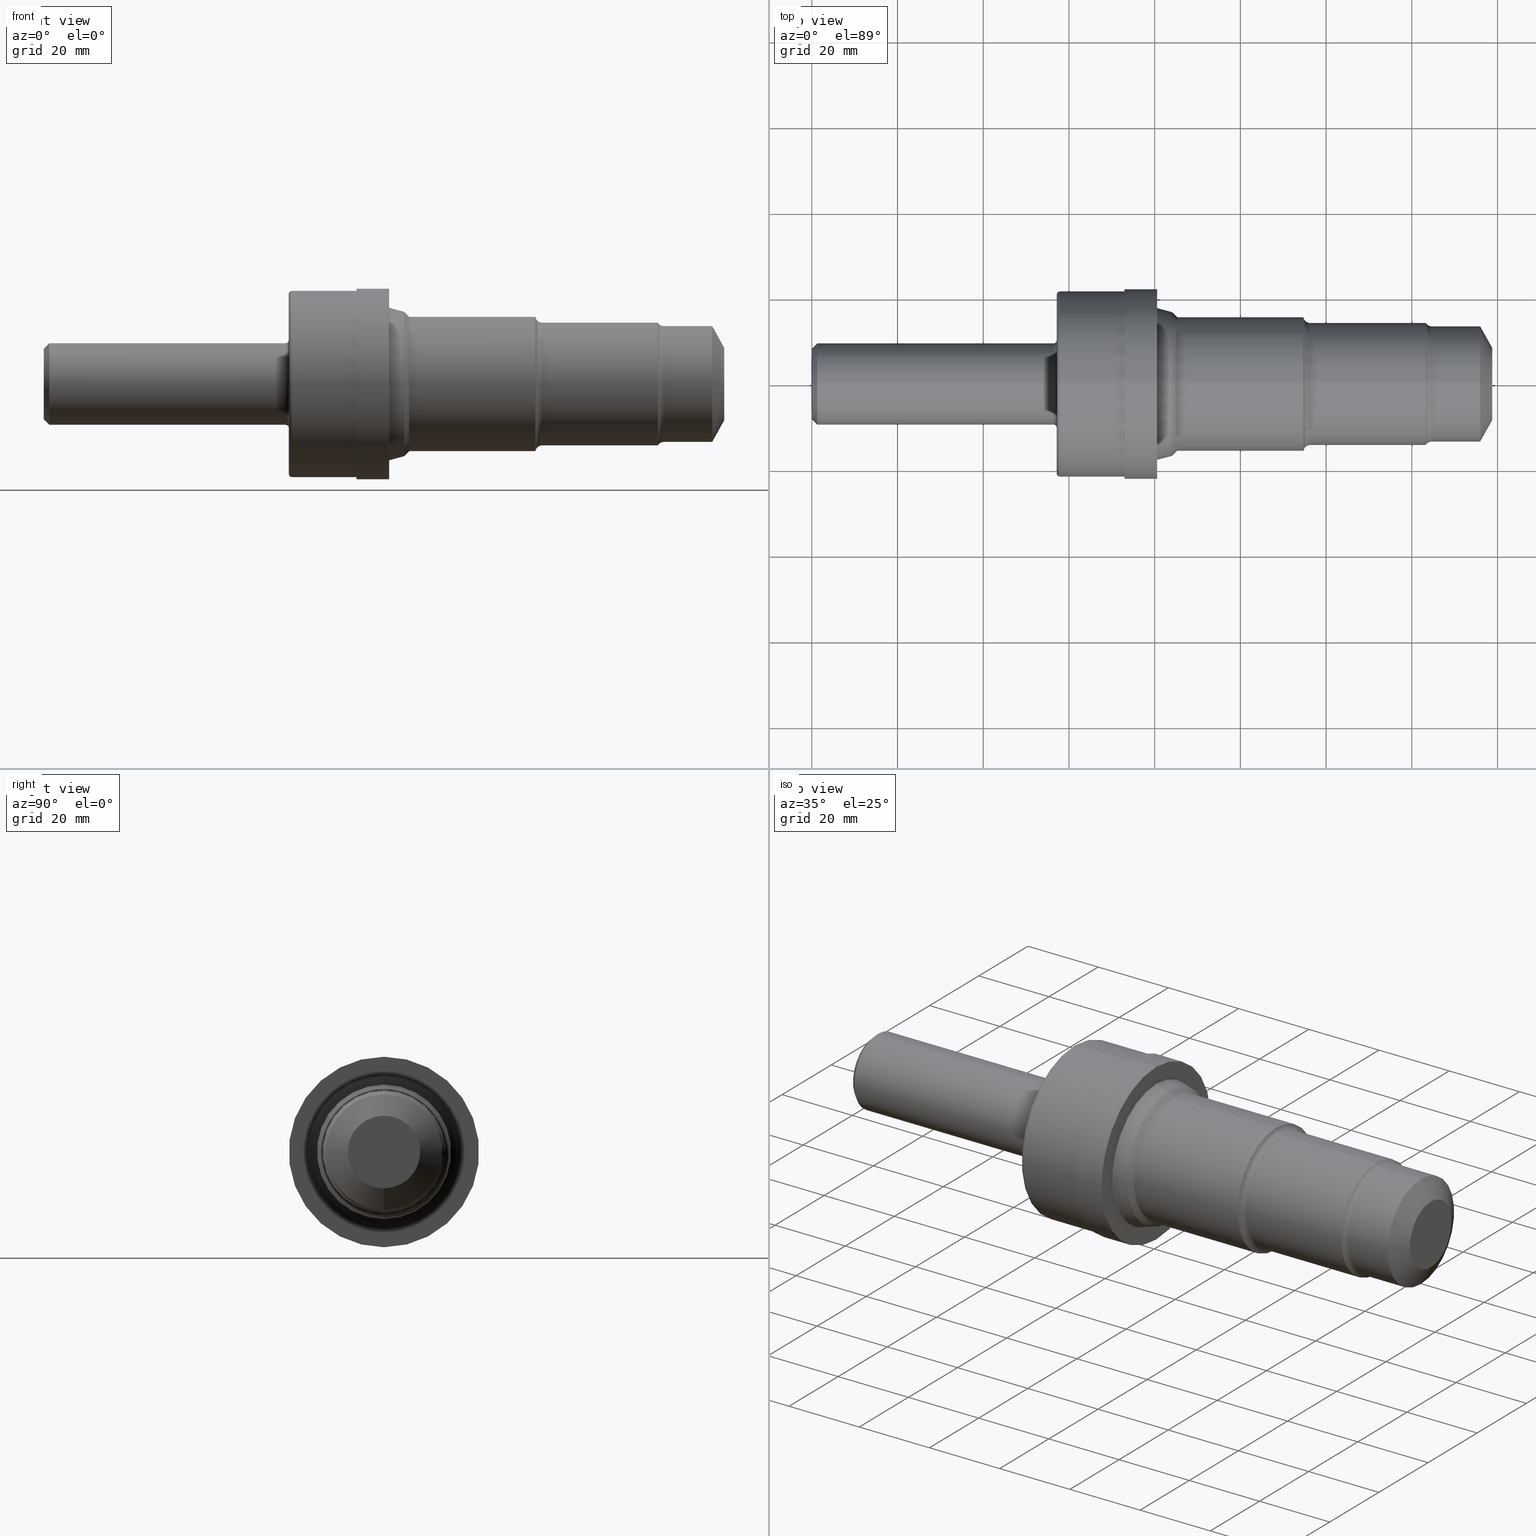
[diagram: canonical four-view strip — front | top / right | iso, engineering-drawing reading convention]
A machine part, canonical four-view strip (front | top / right | iso — engineering-drawing reading convention). The complete STEP part file that produces these views, byte-faithful:
ISO-10303-21;
HEADER;
FILE_DESCRIPTION (( 'STEP AP214' ),
    '1' );
FILE_NAME ('C-16-3-FINISH-X8.STEP',
    '2020-02-03T21:03:58',
    ( '' ),
    ( '' ),
    'SwSTEP 2.0',
    'SolidWorks 2018',
    '' );
FILE_SCHEMA (( 'AUTOMOTIVE_DESIGN' ));
ENDSEC;

DATA;
#1 = DIRECTION ( 'NONE',  ( -1.000000000000000000, 0.0000000000000000000, -0.0000000000000000000 ) ) ;
#2 = DIRECTION ( 'NONE',  ( 0.0000000000000000000, 0.0000000000000000000, 1.000000000000000000 ) ) ;
#3 = EDGE_CURVE ( 'NONE', #145, #140, #523, .T. ) ;
#4 = DIRECTION ( 'NONE',  ( -1.000000000000000000, -0.0000000000000000000, -0.0000000000000000000 ) ) ;
#5 = CIRCLE ( 'NONE', #660, 0.4048500000000005983 ) ;
#6 = ORIENTED_EDGE ( 'NONE', *, *, #785, .F. ) ;
#7 = ORIENTED_EDGE ( 'NONE', *, *, #403, .F. ) ;
#8 = CARTESIAN_POINT ( 'NONE',  ( 0.0000000000000000000, 4.284426826817016740E-17, 0.3248500000000002497 ) ) ;
#9 = DIRECTION ( 'NONE',  ( 0.0000000000000000000, 0.0000000000000000000, 1.000000000000000000 ) ) ;
#10 = VECTOR ( 'NONE', #542, 39.37007874015748143 ) ;
#11 = DIRECTION ( 'NONE',  ( -1.000000000000000000, -0.0000000000000000000, -0.0000000000000000000 ) ) ;
#12 = AXIS2_PLACEMENT_3D ( 'NONE', #19, #541, #471 ) ;
#13 = ORIENTED_EDGE ( 'NONE', *, *, #702, .T. ) ;
#14 = DIRECTION ( 'NONE',  ( 0.0000000000000000000, 0.0000000000000000000, 1.000000000000000000 ) ) ;
#15 = LINE ( 'NONE', #649, #782 ) ;
#16 = DIRECTION ( 'NONE',  ( 0.0000000000000000000, 0.0000000000000000000, 1.000000000000000000 ) ) ;
#17 = CIRCLE ( 'NONE', #357, 0.6635230114445048732 ) ;
#18 = EDGE_CURVE ( 'NONE', #812, #663, #592, .T. ) ;
#19 = CARTESIAN_POINT ( 'NONE',  ( 4.577428332225449203, 0.0000000000000000000, 0.0000000000000000000 ) ) ;
#20 = ORIENTED_EDGE ( 'NONE', *, *, #463, .T. ) ;
#21 = ORIENTED_EDGE ( 'NONE', *, *, #494, .F. ) ;
#22 = DIRECTION ( 'NONE',  ( 0.0000000000000000000, 0.0000000000000000000, 1.000000000000000000 ) ) ;
#23 = TOROIDAL_SURFACE ( 'NONE', #845, 0.6254000000000000670, 0.06200000000000022160 ) ;
#24 = CARTESIAN_POINT ( 'NONE',  ( 0.0000000000000000000, 0.0000000000000000000, 0.0000000000000000000 ) ) ;
#25 = UNCERTAINTY_MEASURE_WITH_UNIT (LENGTH_MEASURE( 1.000000000000000082E-05 ), #126, 'distance_accuracy_value', 'NONE');
#26 = DIRECTION ( 'NONE',  ( -1.000000000000000000, -0.0000000000000000000, -0.0000000000000000000 ) ) ;
#27 = EDGE_CURVE ( 'NONE', #691, #468, #816, .T. ) ;
#28 = CARTESIAN_POINT ( 'NONE',  ( 2.220000000000000195, 4.957982566348066292E-17, -0.4048500000000005983 ) ) ;
#29 = AXIS2_PLACEMENT_3D ( 'NONE', #147, #533, #627 ) ;
#30 = ORIENTED_EDGE ( 'NONE', *, *, #131, .F. ) ;
#31 = CIRCLE ( 'NONE', #667, 0.3334547469201429304 ) ;
#32 = CARTESIAN_POINT ( 'NONE',  ( 2.250000000000000000, 0.0000000000000000000, 0.0000000000000000000 ) ) ;
#33 = ORIENTED_EDGE ( 'NONE', *, *, #474, .F. ) ;
#34 = ADVANCED_FACE ( 'NONE', ( #624 ), #402, .T. ) ;
#35 = DIRECTION ( 'NONE',  ( -0.4848096202463347826, 0.0000000000000000000, 0.8746197071393970734 ) ) ;
#36 = FACE_OUTER_BOUND ( 'NONE', #283, .T. ) ;
#37 = APPLICATION_CONTEXT ( 'automotive_design' ) ;
#38 = EDGE_LOOP ( 'NONE', ( #851, #746, #234, #538 ) ) ;
#39 = ADVANCED_FACE ( 'NONE', ( #87 ), #445, .F. ) ;
#40 = DIRECTION ( 'NONE',  ( -1.000000000000000000, -0.0000000000000000000, -0.0000000000000000000 ) ) ;
#41 = TOROIDAL_SURFACE ( 'NONE', #254, 0.5939000000000000945, 0.06200000000000008282 ) ;
#42 = DIRECTION ( 'NONE',  ( -1.000000000000000000, -0.0000000000000000000, -0.0000000000000000000 ) ) ;
#43 = ORIENTED_EDGE ( 'NONE', *, *, #163, .T. ) ;
#44 = ORIENTED_EDGE ( 'NONE', *, *, #393, .F. ) ;
#45 = DIMENSIONAL_EXPONENTS ( 1.000000000000000000, 0.0000000000000000000, 0.0000000000000000000, 0.0000000000000000000, 0.0000000000000000000, 0.0000000000000000000, 0.0000000000000000000 ) ;
#46 = CARTESIAN_POINT ( 'NONE',  ( 2.279999999999999805, 0.0000000000000000000, 0.8250000000000000666 ) ) ;
#47 = AXIS2_PLACEMENT_3D ( 'NONE', #154, #232, #765 ) ;
#48 = CIRCLE ( 'NONE', #539, 0.3248500000000002497 ) ;
#49 = AXIS2_PLACEMENT_3D ( 'NONE', #317, #501, #419 ) ;
#50 = EDGE_LOOP ( 'NONE', ( #259, #407, #305, #788 ) ) ;
#51 = CARTESIAN_POINT ( 'NONE',  ( 3.177929447639180616, 0.0000000000000000000, 0.6989112092935192422 ) ) ;
#52 = CARTESIAN_POINT ( 'NONE',  ( 5.641000000000000014, 0.0000000000000000000, 0.0000000000000000000 ) ) ;
#53 = ADVANCED_FACE ( 'NONE', ( #640 ), #127, .T. ) ;
#54 = VERTEX_POINT ( 'NONE', #85 ) ;
#55 = AXIS2_PLACEMENT_3D ( 'NONE', #92, #847, #636 ) ;
#56 = FACE_OUTER_BOUND ( 'NONE', #448, .T. ) ;
#57 = ORIENTED_EDGE ( 'NONE', *, *, #757, .F. ) ;
#58 = VERTEX_POINT ( 'NONE', #303 ) ;
#59 = EDGE_LOOP ( 'NONE', ( #77, #921, #910, #128 ) ) ;
#60 = DIRECTION ( 'NONE',  ( 0.0000000000000000000, 0.0000000000000000000, 1.000000000000000000 ) ) ;
#61 = CIRCLE ( 'NONE', #895, 0.3248500000000002497 ) ;
#62 = CARTESIAN_POINT ( 'NONE',  ( 0.0000000000000000000, 0.0000000000000000000, 0.0000000000000000000 ) ) ;
#63 = ORIENTED_EDGE ( 'NONE', *, *, #421, .F. ) ;
#64 = CARTESIAN_POINT ( 'NONE',  ( 0.0000000000000000000, 0.0000000000000000000, 0.0000000000000000000 ) ) ;
#65 = EDGE_CURVE ( 'NONE', #789, #800, #836, .T. ) ;
#66 = ORIENTED_EDGE ( 'NONE', *, *, #344, .F. ) ;
#67 = AXIS2_PLACEMENT_3D ( 'NONE', #938, #230, #16 ) ;
#68 = DIRECTION ( 'NONE',  ( 0.0000000000000000000, 0.0000000000000000000, 1.000000000000000000 ) ) ;
#69 = DIRECTION ( 'NONE',  ( 0.0000000000000000000, 0.0000000000000000000, 1.000000000000000000 ) ) ;
#70 = CIRCLE ( 'NONE', #196, 0.3748500000000000165 ) ;
#71 = ORIENTED_EDGE ( 'NONE', *, *, #436, .F. ) ;
#72 = CARTESIAN_POINT ( 'NONE',  ( 2.872000000000000330, 0.8549999999999999822, 0.0000000000000000000 ) ) ;
#73 = ORIENTED_EDGE ( 'NONE', *, *, #369, .T. ) ;
#74 = DIRECTION ( 'NONE',  ( 0.0000000000000000000, 0.0000000000000000000, 1.000000000000000000 ) ) ;
#75 = TOROIDAL_SURFACE ( 'NONE', #867, 0.4048500000000005983, 0.02999999999999988440 ) ;
#76 = ORIENTED_EDGE ( 'NONE', *, *, #417, .F. ) ;
#77 = ORIENTED_EDGE ( 'NONE', *, *, #727, .T. ) ;
#78 = CARTESIAN_POINT ( 'NONE',  ( 0.0000000000000000000, 0.0000000000000000000, 0.8750000000000000000 ) ) ;
#79 = CARTESIAN_POINT ( 'NONE',  ( 0.0000000000000000000, 0.0000000000000000000, 0.0000000000000000000 ) ) ;
#80 = EDGE_CURVE ( 'NONE', #140, #738, #256, .T. ) ;
#81 = CIRCLE ( 'NONE', #88, 0.02999999999999988440 ) ;
#82 = CARTESIAN_POINT ( 'NONE',  ( 5.694979162646339965, 0.0000000000000000000, 0.0000000000000000000 ) ) ;
#83 = ORIENTED_EDGE ( 'NONE', *, *, #437, .T. ) ;
#84 = AXIS2_PLACEMENT_3D ( 'NONE', #235, #263, #272 ) ;
#85 = CARTESIAN_POINT ( 'NONE',  ( 3.356523011444505045, 0.0000000000000000000, 0.6169999999999999929 ) ) ;
#86 = VERTEX_POINT ( 'NONE', #777 ) ;
#87 = FACE_OUTER_BOUND ( 'NONE', #842, .T. ) ;
#88 = AXIS2_PLACEMENT_3D ( 'NONE', #28, #399, #328 ) ;
#89 = ADVANCED_FACE ( 'NONE', ( #665 ), #231, .F. ) ;
#90 = DIRECTION ( 'NONE',  ( 0.0000000000000000000, 0.0000000000000000000, 1.000000000000000000 ) ) ;
#91 = FACE_OUTER_BOUND ( 'NONE', #930, .T. ) ;
#92 = CARTESIAN_POINT ( 'NONE',  ( 3.356523011444505045, 0.0000000000000000000, 0.0000000000000000000 ) ) ;
#93 = EDGE_CURVE ( 'NONE', #58, #632, #562, .T. ) ;
#94 = DIRECTION ( 'NONE',  ( -1.000000000000000000, -0.0000000000000000000, -0.0000000000000000000 ) ) ;
#95 = ORIENTED_EDGE ( 'NONE', *, *, #18, .T. ) ;
#96 = DIRECTION ( 'NONE',  ( -1.000000000000000000, -0.0000000000000000000, -0.0000000000000000000 ) ) ;
#97 = DIRECTION ( 'NONE',  ( -1.000000000000000000, -0.0000000000000000000, -0.0000000000000000000 ) ) ;
#98 = CYLINDRICAL_SURFACE ( 'NONE', #922, 0.3748500000000002386 ) ;
#99 = ADVANCED_FACE ( 'NONE', ( #172 ), #215, .T. ) ;
#100 = DIRECTION ( 'NONE',  ( -1.000000000000000000, -0.0000000000000000000, -0.0000000000000000000 ) ) ;
#101 = AXIS2_PLACEMENT_3D ( 'NONE', #903, #376, #716 ) ;
#102 = AXIS2_PLACEMENT_3D ( 'NONE', #573, #384, #267 ) ;
#103 = EDGE_LOOP ( 'NONE', ( #916, #651 ) ) ;
#104 = ORIENTED_EDGE ( 'NONE', *, *, #27, .F. ) ;
#105 = DIRECTION ( 'NONE',  ( 0.0000000000000000000, 0.0000000000000000000, 1.000000000000000000 ) ) ;
#106 = ORIENTED_EDGE ( 'NONE', *, *, #580, .F. ) ;
#107 = CARTESIAN_POINT ( 'NONE',  ( 0.0000000000000000000, 0.0000000000000000000, 0.0000000000000000000 ) ) ;
#108 = STYLED_ITEM ( 'NONE', ( #414 ), #720 ) ;
#109 = CYLINDRICAL_SURFACE ( 'NONE', #569, 0.5319000000000000394 ) ;
#110 = DIRECTION ( 'NONE',  ( 1.000000000000000000, 0.0000000000000000000, 0.0000000000000000000 ) ) ;
#111 =( NAMED_UNIT ( * ) SI_UNIT ( $, .STERADIAN. ) SOLID_ANGLE_UNIT ( ) );
#112 = VERTEX_POINT ( 'NONE', #521 ) ;
#113 =( NAMED_UNIT ( * ) PLANE_ANGLE_UNIT ( ) SI_UNIT ( $, .RADIAN. ) );
#114 = FACE_OUTER_BOUND ( 'NONE', #182, .T. ) ;
#115 = ORIENTED_EDGE ( 'NONE', *, *, #137, .F. ) ;
#116 = CARTESIAN_POINT ( 'NONE',  ( 4.577428332225449203, 0.0000000000000000000, 0.0000000000000000000 ) ) ;
#117 = CARTESIAN_POINT ( 'NONE',  ( 3.172000000000000597, 0.0000000000000000000, 0.0000000000000000000 ) ) ;
#118 = ADVANCED_FACE ( 'NONE', ( #755 ), #130, .F. ) ;
#119 = CARTESIAN_POINT ( 'NONE',  ( 3.310000000000000497, 0.0000000000000000000, 0.0000000000000000000 ) ) ;
#120 = VERTEX_POINT ( 'NONE', #439 ) ;
#121 = CARTESIAN_POINT ( 'NONE',  ( 2.872000000000000330, 0.0000000000000000000, 0.8750000000000000000 ) ) ;
#122 = EDGE_CURVE ( 'NONE', #54, #939, #446, .T. ) ;
#123 = MANIFOLD_SOLID_BREP ( '7A5F110F-0F29-4381-85B1-AB206B0365E7-GAAFaceID18', #794 ) ;
#124 = AXIS2_PLACEMENT_3D ( 'NONE', #242, #694, #675 ) ;
#125 = CONICAL_SURFACE ( 'NONE', #593, 0.3748500000000000165, 0.7853981633974463916 ) ;
#126 =( CONVERSION_BASED_UNIT ( 'INCH', #475 ) LENGTH_UNIT ( ) NAMED_UNIT ( #710 ) );
#127 = TOROIDAL_SURFACE ( 'NONE', #644, 0.8250000000000000666, 0.02999999999999995379 ) ;
#128 = ORIENTED_EDGE ( 'NONE', *, *, #942, .F. ) ;
#129 = VECTOR ( 'NONE', #356, 39.37007874015748854 ) ;
#130 = PLANE ( 'NONE',  #559 ) ;
#131 = EDGE_CURVE ( 'NONE', #136, #499, #416, .T. ) ;
#132 = CONICAL_SURFACE ( 'NONE', #55, 0.6169999999999999929, 0.7853981633974497223 ) ;
#133 = AXIS2_PLACEMENT_3D ( 'NONE', #790, #490, #870 ) ;
#134 = ORIENTED_EDGE ( 'NONE', *, *, #758, .T. ) ;
#135 = CARTESIAN_POINT ( 'NONE',  ( 3.177929447639180616, 0.0000000000000000000, 0.0000000000000000000 ) ) ;
#136 = VERTEX_POINT ( 'NONE', #937 ) ;
#137 = EDGE_CURVE ( 'NONE', #54, #540, #621, .T. ) ;
#138 = CARTESIAN_POINT ( 'NONE',  ( 0.0000000000000000000, 6.899660066396186003E-17, -0.5633999999999999009 ) ) ;
#139 = LINE ( 'NONE', #458, #274 ) ;
#140 = VERTEX_POINT ( 'NONE', #931 ) ;
#141 = CARTESIAN_POINT ( 'NONE',  ( 3.310000000000000497, 0.0000000000000000000, 0.6635230114445048732 ) ) ;
#142 = DIRECTION ( 'NONE',  ( -0.4848096202463347826, 1.071100224819458088E-16, -0.8746197071393970734 ) ) ;
#143 = AXIS2_PLACEMENT_3D ( 'NONE', #684, #226, #609 ) ;
#144 = DIRECTION ( 'NONE',  ( -1.000000000000000000, -0.0000000000000000000, -0.0000000000000000000 ) ) ;
#145 = VERTEX_POINT ( 'NONE', #429 ) ;
#146 = DIRECTION ( 'NONE',  ( 0.0000000000000000000, 0.0000000000000000000, 1.000000000000000000 ) ) ;
#147 = CARTESIAN_POINT ( 'NONE',  ( 3.177929447639180616, 0.0000000000000000000, 0.0000000000000000000 ) ) ;
#148 = FACE_OUTER_BOUND ( 'NONE', #318, .T. ) ;
#149 = ORIENTED_EDGE ( 'NONE', *, *, #443, .F. ) ;
#150 = ORIENTED_EDGE ( 'NONE', *, *, #398, .T. ) ;
#151 = DIRECTION ( 'NONE',  ( -0.0000000000000000000, 1.000000000000000000, 1.224646799147353207E-16 ) ) ;
#152 = DIRECTION ( 'NONE',  ( -1.000000000000000000, -0.0000000000000000000, -0.0000000000000000000 ) ) ;
#153 = CONICAL_SURFACE ( 'NONE', #133, 0.6169999999999999929, 0.7853981633974497223 ) ;
#154 = CARTESIAN_POINT ( 'NONE',  ( 4.577428332225449203, 7.658941081867548241E-17, -0.6254000000000000670 ) ) ;
#155 = CARTESIAN_POINT ( 'NONE',  ( 6.250000000000000000, 4.083642884762437549E-17, -0.3334547469201429304 ) ) ;
#156 = ADVANCED_FACE ( 'NONE', ( #791 ), #184, .T. ) ;
#157 = CARTESIAN_POINT ( 'NONE',  ( 4.577428332225449203, 0.0000000000000000000, 0.6254000000000000670 ) ) ;
#158 = PRODUCT_DEFINITION ( 'UNKNOWN', '', #564, #427 ) ;
#159 = CARTESIAN_POINT ( 'NONE',  ( 0.0000000000000000000, 0.0000000000000000000, 0.8549999999999999822 ) ) ;
#160 = ORIENTED_EDGE ( 'NONE', *, *, #739, .F. ) ;
#161 = ADVANCED_FACE ( 'NONE', ( #210 ), #770, .T. ) ;
#162 = FACE_OUTER_BOUND ( 'NONE', #936, .T. ) ;
#163 = EDGE_CURVE ( 'NONE', #771, #347, #5, .T. ) ;
#164 = ORIENTED_EDGE ( 'NONE', *, *, #213, .F. ) ;
#165 = AXIS2_PLACEMENT_3D ( 'NONE', #551, #279, #193 ) ;
#166 = CARTESIAN_POINT ( 'NONE',  ( 2.279999999999999805, 0.0000000000000000000, 0.0000000000000000000 ) ) ;
#167 = LINE ( 'NONE', #932, #934 ) ;
#168 = DIRECTION ( 'NONE',  ( 0.0000000000000000000, 0.0000000000000000000, 1.000000000000000000 ) ) ;
#169 = CARTESIAN_POINT ( 'NONE',  ( 3.172000000000000597, 0.0000000000000000000, 0.8750000000000000000 ) ) ;
#170 = ORIENTED_EDGE ( 'NONE', *, *, #487, .T. ) ;
#171 = ORIENTED_EDGE ( 'NONE', *, *, #652, .F. ) ;
#172 = FACE_OUTER_BOUND ( 'NONE', #310, .T. ) ;
#173 = EDGE_CURVE ( 'NONE', #379, #595, #385, .T. ) ;
#174 = CIRCLE ( 'NONE', #390, 0.8750000000000000000 ) ;
#175 = ORIENTED_EDGE ( 'NONE', *, *, #852, .F. ) ;
#176 = AXIS2_PLACEMENT_3D ( 'NONE', #223, #4, #14 ) ;
#177 = CIRCLE ( 'NONE', #102, 0.6169999999999999929 ) ;
#178 = ORIENTED_EDGE ( 'NONE', *, *, #485, .F. ) ;
#179 = SURFACE_STYLE_FILL_AREA ( #284 ) ;
#180 = CARTESIAN_POINT ( 'NONE',  ( 0.05000000000000000278, 0.0000000000000000000, 0.0000000000000000000 ) ) ;
#181 = AXIS2_PLACEMENT_3D ( 'NONE', #72, #875, #753 ) ;
#182 = EDGE_LOOP ( 'NONE', ( #106, #219, #95, #560 ) ) ;
#183 = LENGTH_MEASURE_WITH_UNIT ( LENGTH_MEASURE( 0.02539999999999999897 ), #500 );
#184 = CYLINDRICAL_SURFACE ( 'NONE', #450, 0.8750000000000000000 ) ;
#185 = ADVANCED_FACE ( 'NONE', ( #575 ), #928, .T. ) ;
#186 = AXIS2_PLACEMENT_3D ( 'NONE', #614, #843, #774 ) ;
#187 = VERTEX_POINT ( 'NONE', #121 ) ;
#188 = DIRECTION ( 'NONE',  ( 0.0000000000000000000, 0.0000000000000000000, -1.000000000000000000 ) ) ;
#189 = DIRECTION ( 'NONE',  ( 0.0000000000000000000, -1.000000000000000000, 0.0000000000000000000 ) ) ;
#190 = LINE ( 'NONE', #754, #919 ) ;
#191 = ADVANCED_FACE ( 'NONE', ( #750 ), #23, .F. ) ;
#192 = DIRECTION ( 'NONE',  ( -1.000000000000000000, -0.0000000000000000000, -0.0000000000000000000 ) ) ;
#193 = DIRECTION ( 'NONE',  ( 0.0000000000000000000, 0.0000000000000000000, 1.000000000000000000 ) ) ;
#194 = DIRECTION ( 'NONE',  ( 0.0000000000000000000, 0.0000000000000000000, -1.000000000000000000 ) ) ;
#195 = EDGE_LOOP ( 'NONE', ( #66, #178, #224, #623 ) ) ;
#196 = AXIS2_PLACEMENT_3D ( 'NONE', #464, #459, #451 ) ;
#197 = DIRECTION ( 'NONE',  ( 0.0000000000000000000, -1.000000000000000000, 0.0000000000000000000 ) ) ;
#198 = CARTESIAN_POINT ( 'NONE',  ( 5.694979162646339965, 0.0000000000000000000, 0.0000000000000000000 ) ) ;
#199 = ORIENTED_EDGE ( 'NONE', *, *, #299, .F. ) ;
#200 = TOROIDAL_SURFACE ( 'NONE', #101, 0.4048500000000005983, 0.02999999999999988440 ) ;
#201 = DIRECTION ( 'NONE',  ( -1.000000000000000000, -0.0000000000000000000, -0.0000000000000000000 ) ) ;
#202 = AXIS2_PLACEMENT_3D ( 'NONE', #773, #768, #749 ) ;
#203 = SURFACE_STYLE_USAGE ( .BOTH. , #664 ) ;
#204 = FACE_OUTER_BOUND ( 'NONE', #345, .T. ) ;
#205 = VECTOR ( 'NONE', #840, 39.37007874015748143 ) ;
#206 = DIRECTION ( 'NONE',  ( -1.000000000000000000, -0.0000000000000000000, -0.0000000000000000000 ) ) ;
#207 = AXIS2_PLACEMENT_3D ( 'NONE', #801, #192, #653 ) ;
#208 = ORIENTED_EDGE ( 'NONE', *, *, #708, .T. ) ;
#209 = AXIS2_PLACEMENT_3D ( 'NONE', #46, #323, #239 ) ;
#210 = FACE_OUTER_BOUND ( 'NONE', #603, .T. ) ;
#211 = ORIENTED_EDGE ( 'NONE', *, *, #369, .F. ) ;
#212 = DIRECTION ( 'NONE',  ( -1.000000000000000000, -0.0000000000000000000, -0.0000000000000000000 ) ) ;
#213 = EDGE_CURVE ( 'NONE', #456, #327, #599, .T. ) ;
#214 = CIRCLE ( 'NONE', #715, 0.6635230114445048732 ) ;
#215 = CONICAL_SURFACE ( 'NONE', #598, 0.6635230114445048732, 0.2617993877991517948 ) ;
#216 = EDGE_LOOP ( 'NONE', ( #434, #76 ) ) ;
#217 = DIRECTION ( 'NONE',  ( -1.000000000000000000, -0.0000000000000000000, -0.0000000000000000000 ) ) ;
#218 = CARTESIAN_POINT ( 'NONE',  ( 2.220000000000000195, 0.0000000000000000000, 0.4048500000000005983 ) ) ;
#219 = ORIENTED_EDGE ( 'NONE', *, *, #443, .T. ) ;
#220 = CONICAL_SURFACE ( 'NONE', #143, 0.3334547469201429304, 1.064650843716543616 ) ;
#221 = CARTESIAN_POINT ( 'NONE',  ( 0.0000000000000000000, 0.0000000000000000000, 0.3748500000000002386 ) ) ;
#222 = DIRECTION ( 'NONE',  ( -1.000000000000000000, -0.0000000000000000000, -0.0000000000000000000 ) ) ;
#223 = CARTESIAN_POINT ( 'NONE',  ( 2.872000000000000330, 0.0000000000000000000, 0.0000000000000000000 ) ) ;
#224 = ORIENTED_EDGE ( 'NONE', *, *, #393, .T. ) ;
#225 = AXIS2_PLACEMENT_3D ( 'NONE', #406, #933, #926 ) ;
#226 = DIRECTION ( 'NONE',  ( -1.000000000000000000, -0.0000000000000000000, -0.0000000000000000000 ) ) ;
#227 = FACE_OUTER_BOUND ( 'NONE', #255, .T. ) ;
#228 = AXIS2_PLACEMENT_3D ( 'NONE', #891, #889, #886 ) ;
#229 = DIRECTION ( 'NONE',  ( 0.0000000000000000000, 0.0000000000000000000, 1.000000000000000000 ) ) ;
#230 = DIRECTION ( 'NONE',  ( -1.000000000000000000, -0.0000000000000000000, -0.0000000000000000000 ) ) ;
#231 = PLANE ( 'NONE',  #477 ) ;
#232 = DIRECTION ( 'NONE',  ( -0.0000000000000000000, 1.000000000000000000, 1.224646799147353207E-16 ) ) ;
#233 = CARTESIAN_POINT ( 'NONE',  ( 2.279999999999999805, 1.047073013270987016E-16, -0.8549999999999999822 ) ) ;
#234 = ORIENTED_EDGE ( 'NONE', *, *, #340, .F. ) ;
#235 = CARTESIAN_POINT ( 'NONE',  ( 0.0000000000000000000, 0.0000000000000000000, 0.0000000000000000000 ) ) ;
#236 = AXIS2_PLACEMENT_3D ( 'NONE', #218, #197, #188 ) ;
#237 = VERTEX_POINT ( 'NONE', #8 ) ;
#238 = ADVANCED_FACE ( 'NONE', ( #162 ), #360, .F. ) ;
#239 = DIRECTION ( 'NONE',  ( 0.0000000000000000000, 0.0000000000000000000, -1.000000000000000000 ) ) ;
#240 = EDGE_CURVE ( 'NONE', #632, #54, #908, .T. ) ;
#241 = VECTOR ( 'NONE', #338, 39.37007874015748854 ) ;
#242 = CARTESIAN_POINT ( 'NONE',  ( 0.0000000000000000000, 0.0000000000000000000, 0.0000000000000000000 ) ) ;
#243 = DIRECTION ( 'NONE',  ( -0.0000000000000000000, 1.000000000000000000, 1.224646799147353207E-16 ) ) ;
#244 = ORIENTED_EDGE ( 'NONE', *, *, #80, .F. ) ;
#245 = DIRECTION ( 'NONE',  ( 0.0000000000000000000, -1.224646799147354933E-16, 1.000000000000000000 ) ) ;
#246 = DIRECTION ( 'NONE',  ( -1.000000000000000000, -0.0000000000000000000, -0.0000000000000000000 ) ) ;
#247 = ORIENTED_EDGE ( 'NONE', *, *, #122, .T. ) ;
#248 = FACE_OUTER_BOUND ( 'NONE', #325, .T. ) ;
#249 = ORIENTED_EDGE ( 'NONE', *, *, #661, .T. ) ;
#250 = ADVANCED_FACE ( 'NONE', ( #527 ), #887, .T. ) ;
#251 = DIRECTION ( 'NONE',  ( 0.0000000000000000000, 0.0000000000000000000, 1.000000000000000000 ) ) ;
#252 = DIRECTION ( 'NONE',  ( 0.0000000000000000000, 0.0000000000000000000, 1.000000000000000000 ) ) ;
#253 = CIRCLE ( 'NONE', #324, 0.3748500000000005161 ) ;
#254 = AXIS2_PLACEMENT_3D ( 'NONE', #198, #312, #483 ) ;
#255 = EDGE_LOOP ( 'NONE', ( #884, #425, #920, #395 ) ) ;
#256 = CIRCLE ( 'NONE', #496, 0.6989112092935192422 ) ;
#257 = ADVANCED_FACE ( 'NONE', ( #336, #703 ), #678, .F. ) ;
#258 = CARTESIAN_POINT ( 'NONE',  ( 2.220000000000000195, 0.0000000000000000000, 0.0000000000000000000 ) ) ;
#259 = ORIENTED_EDGE ( 'NONE', *, *, #289, .F. ) ;
#260 =( NAMED_UNIT ( * ) PLANE_ANGLE_UNIT ( ) SI_UNIT ( $, .RADIAN. ) );
#261 = ORIENTED_EDGE ( 'NONE', *, *, #292, .F. ) ;
#262 = UNCERTAINTY_MEASURE_WITH_UNIT (LENGTH_MEASURE( 1.000000000000000082E-05 ), #669, 'distance_accuracy_value', 'NONE');
#263 = DIRECTION ( 'NONE',  ( -1.000000000000000000, -0.0000000000000000000, -0.0000000000000000000 ) ) ;
#264 = ADVANCED_FACE ( 'NONE', ( #114 ), #98, .T. ) ;
#265 = CIRCLE ( 'NONE', #372, 0.8250000000000000666 ) ;
#266 = PRODUCT_DEFINITION_SHAPE ( 'NONE', 'NONE',  #158 ) ;
#267 = DIRECTION ( 'NONE',  ( 0.0000000000000000000, 0.0000000000000000000, 1.000000000000000000 ) ) ;
#268 = AXIS2_PLACEMENT_3D ( 'NONE', #157, #480, #911 ) ;
#269 = ORIENTED_EDGE ( 'NONE', *, *, #426, .T. ) ;
#270 =( GEOMETRIC_REPRESENTATION_CONTEXT ( 3 ) GLOBAL_UNCERTAINTY_ASSIGNED_CONTEXT ( ( #949 ) ) GLOBAL_UNIT_ASSIGNED_CONTEXT ( ( #637, #113, #111 ) ) REPRESENTATION_CONTEXT ( 'NONE', 'WORKASPACE' ) );
#271 = DIRECTION ( 'NONE',  ( -1.000000000000000000, -0.0000000000000000000, -0.0000000000000000000 ) ) ;
#272 = DIRECTION ( 'NONE',  ( 0.0000000000000000000, 0.0000000000000000000, 1.000000000000000000 ) ) ;
#273 = ORIENTED_EDGE ( 'NONE', *, *, #440, .F. ) ;
#274 = VECTOR ( 'NONE', #217, 39.37007874015748143 ) ;
#275 = CARTESIAN_POINT ( 'NONE',  ( 3.356523011444505045, 0.0000000000000000000, 0.0000000000000000000 ) ) ;
#276 = DIRECTION ( 'NONE',  ( -0.0000000000000000000, 1.000000000000000000, 1.224646799147353207E-16 ) ) ;
#277 = DIRECTION ( 'NONE',  ( -1.000000000000000000, -0.0000000000000000000, -0.0000000000000000000 ) ) ;
#278 = ORIENTED_EDGE ( 'NONE', *, *, #3, .T. ) ;
#279 = DIRECTION ( 'NONE',  ( -1.000000000000000000, -0.0000000000000000000, -0.0000000000000000000 ) ) ;
#280 = CARTESIAN_POINT ( 'NONE',  ( 0.05000000000000000278, 0.0000000000000000000, 0.0000000000000000000 ) ) ;
#281 = CIRCLE ( 'NONE', #549, 0.4048500000000005983 ) ;
#282 = DIRECTION ( 'NONE',  ( 0.0000000000000000000, 0.0000000000000000000, 1.000000000000000000 ) ) ;
#283 = EDGE_LOOP ( 'NONE', ( #6, #388, #576, #495 ) ) ;
#284 = FILL_AREA_STYLE ('',( #813 ) ) ;
#285 = VERTEX_POINT ( 'NONE', #293 ) ;
#286 = DIRECTION ( 'NONE',  ( -1.000000000000000000, -0.0000000000000000000, -0.0000000000000000000 ) ) ;
#287 = CIRCLE ( 'NONE', #704, 0.02999999999999995379 ) ;
#288 = ORIENTED_EDGE ( 'NONE', *, *, #426, .F. ) ;
#289 = EDGE_CURVE ( 'NONE', #58, #540, #313, .T. ) ;
#290 = CARTESIAN_POINT ( 'NONE',  ( 2.250000000000000000, 0.0000000000000000000, 0.0000000000000000000 ) ) ;
#291 = LINE ( 'NONE', #78, #508 ) ;
#292 = EDGE_CURVE ( 'NONE', #824, #187, #291, .T. ) ;
#293 = CARTESIAN_POINT ( 'NONE',  ( 2.872000000000000330, 0.0000000000000000000, 0.8549999999999999822 ) ) ;
#294 = DIRECTION ( 'NONE',  ( -1.000000000000000000, 0.0000000000000000000, -0.0000000000000000000 ) ) ;
#295 = ORIENTED_EDGE ( 'NONE', *, *, #892, .F. ) ;
#296 = EDGE_LOOP ( 'NONE', ( #506, #856 ) ) ;
#297 = DIRECTION ( 'NONE',  ( -1.000000000000000000, -0.0000000000000000000, -0.0000000000000000000 ) ) ;
#298 = DIRECTION ( 'NONE',  ( -1.000000000000000000, -0.0000000000000000000, -0.0000000000000000000 ) ) ;
#299 = EDGE_CURVE ( 'NONE', #314, #691, #139, .T. ) ;
#300 = CARTESIAN_POINT ( 'NONE',  ( 2.220000000000000195, 0.0000000000000000000, 0.3748500000000005161 ) ) ;
#301 = EDGE_LOOP ( 'NONE', ( #807, #537 ) ) ;
#302 = CARTESIAN_POINT ( 'NONE',  ( 3.180000000000000604, 0.0000000000000000000, 0.0000000000000000000 ) ) ;
#303 = CARTESIAN_POINT ( 'NONE',  ( 4.516000000000000902, 7.556070750739168581E-17, -0.6169999999999999929 ) ) ;
#304 = CARTESIAN_POINT ( 'NONE',  ( 0.0000000000000000000, 1.071565949253934025E-16, -0.8750000000000000000 ) ) ;
#305 = ORIENTED_EDGE ( 'NONE', *, *, #240, .T. ) ;
#306 = ADVANCED_FACE ( 'NONE', ( #676 ), #75, .F. ) ;
#307 = CARTESIAN_POINT ( 'NONE',  ( 2.279999999999999805, 1.010333609296566501E-16, -0.8250000000000000666 ) ) ;
#308 = CIRCLE ( 'NONE', #202, 0.7066386159038314796 ) ;
#309 = CARTESIAN_POINT ( 'NONE',  ( 4.577428332225449203, 0.0000000000000000000, 0.5633999999999999009 ) ) ;
#310 = EDGE_LOOP ( 'NONE', ( #170, #444, #476, #211 ) ) ;
#311 = AXIS2_PLACEMENT_3D ( 'NONE', #302, #467, #229 ) ;
#312 = DIRECTION ( 'NONE',  ( -1.000000000000000000, -0.0000000000000000000, -0.0000000000000000000 ) ) ;
#313 = LINE ( 'NONE', #530, #866 ) ;
#314 = VERTEX_POINT ( 'NONE', #826 ) ;
#315 = ADVANCED_FACE ( 'NONE', ( #248 ), #656, .F. ) ;
#316 = EDGE_LOOP ( 'NONE', ( #752, #900, #647, #839 ) ) ;
#317 = CARTESIAN_POINT ( 'NONE',  ( 2.279999999999999805, 0.0000000000000000000, 0.0000000000000000000 ) ) ;
#318 = EDGE_LOOP ( 'NONE', ( #935, #858, #553, #337 ) ) ;
#319 = ADVANCED_FACE ( 'NONE', ( #56 ), #220, .T. ) ;
#320 = PRODUCT_CONTEXT ( 'NONE', #642, 'mechanical' ) ;
#321 = VERTEX_POINT ( 'NONE', #829 ) ;
#322 = CIRCLE ( 'NONE', #868, 0.8549999999999999822 ) ;
#323 = DIRECTION ( 'NONE',  ( 0.0000000000000000000, -1.000000000000000000, 0.0000000000000000000 ) ) ;
#324 = AXIS2_PLACEMENT_3D ( 'NONE', #258, #431, #251 ) ;
#325 = EDGE_LOOP ( 'NONE', ( #33, #940, #834, #63 ) ) ;
#326 = ORIENTED_EDGE ( 'NONE', *, *, #344, .T. ) ;
#327 = VERTEX_POINT ( 'NONE', #897 ) ;
#328 = DIRECTION ( 'NONE',  ( 0.0000000000000000000, -1.224646799147352714E-16, 1.000000000000000000 ) ) ;
#329 = CIRCLE ( 'NONE', #556, 0.7066386159038314796 ) ;
#330 = EDGE_CURVE ( 'NONE', #540, #54, #823, .T. ) ;
#331 = AXIS2_PLACEMENT_3D ( 'NONE', #107, #629, #854 ) ;
#332 = ADVANCED_FACE ( 'NONE', ( #489 ), #432, .F. ) ;
#333 = ORIENTED_EDGE ( 'NONE', *, *, #699, .F. ) ;
#334 = SHAPE_DEFINITION_REPRESENTATION ( #266, #720 ) ;
#335 = DIRECTION ( 'NONE',  ( -1.000000000000000000, -0.0000000000000000000, -0.0000000000000000000 ) ) ;
#336 = FACE_BOUND ( 'NONE', #216, .T. ) ;
#337 = ORIENTED_EDGE ( 'NONE', *, *, #412, .F. ) ;
#338 = DIRECTION ( 'NONE',  ( -0.7071067811865464625, 8.659560562354943952E-17, -0.7071067811865484609 ) ) ;
#339 = MECHANICAL_DESIGN_GEOMETRIC_PRESENTATION_REPRESENTATION (  '', ( #108 ), #270 ) ;
#340 = EDGE_CURVE ( 'NONE', #800, #789, #850, .T. ) ;
#341 = LINE ( 'NONE', #304, #205 ) ;
#342 = DIRECTION ( 'NONE',  ( 0.0000000000000000000, 0.0000000000000000000, 1.000000000000000000 ) ) ;
#343 = CARTESIAN_POINT ( 'NONE',  ( 0.0000000000000000000, 0.0000000000000000000, 0.0000000000000000000 ) ) ;
#344 = EDGE_CURVE ( 'NONE', #58, #789, #455, .T. ) ;
#345 = EDGE_LOOP ( 'NONE', ( #783, #522 ) ) ;
#346 = AXIS2_PLACEMENT_3D ( 'NONE', #528, #888, #2 ) ;
#347 = VERTEX_POINT ( 'NONE', #833 ) ;
#348 = PRODUCT_RELATED_PRODUCT_CATEGORY ( 'part', '', ( #841 ) ) ;
#349 = DIRECTION ( 'NONE',  ( 0.0000000000000000000, 0.0000000000000000000, 1.000000000000000000 ) ) ;
#350 = CYLINDRICAL_SURFACE ( 'NONE', #331, 0.3748500000000002386 ) ;
#351 = DIRECTION ( 'NONE',  ( 0.0000000000000000000, 0.0000000000000000000, 1.000000000000000000 ) ) ;
#352 = ORIENTED_EDGE ( 'NONE', *, *, #131, .T. ) ;
#353 = ORIENTED_EDGE ( 'NONE', *, *, #806, .F. ) ;
#354 = DIRECTION ( 'NONE',  ( -1.000000000000000000, -0.0000000000000000000, -0.0000000000000000000 ) ) ;
#355 = CIRCLE ( 'NONE', #409, 0.3334547469201429304 ) ;
#356 = DIRECTION ( 'NONE',  ( -0.7071067811865464625, 0.0000000000000000000, 0.7071067811865484609 ) ) ;
#357 = AXIS2_PLACEMENT_3D ( 'NONE', #617, #567, #392 ) ;
#358 = CARTESIAN_POINT ( 'NONE',  ( 3.356523011444505045, 7.556070750739168581E-17, -0.6169999999999999929 ) ) ;
#359 = DIRECTION ( 'NONE',  ( -1.000000000000000000, -0.0000000000000000000, -0.0000000000000000000 ) ) ;
#360 = TOROIDAL_SURFACE ( 'NONE', #382, 0.6254000000000000670, 0.06200000000000022160 ) ;
#361 = DIRECTION ( 'NONE',  ( 0.0000000000000000000, 0.0000000000000000000, 1.000000000000000000 ) ) ;
#362 = VERTEX_POINT ( 'NONE', #760 ) ;
#363 = AXIS2_PLACEMENT_3D ( 'NONE', #119, #277, #492 ) ;
#364 = CIRCLE ( 'NONE', #228, 0.5319000000000000394 ) ;
#365 = ORIENTED_EDGE ( 'NONE', *, *, #652, .T. ) ;
#366 = CARTESIAN_POINT ( 'NONE',  ( 2.220000000000000195, 0.0000000000000000000, 0.0000000000000000000 ) ) ;
#367 = EDGE_LOOP ( 'NONE', ( #352, #893, #405, #725 ) ) ;
#368 = FACE_OUTER_BOUND ( 'NONE', #59, .T. ) ;
#369 = EDGE_CURVE ( 'NONE', #939, #738, #607, .T. ) ;
#370 = EDGE_LOOP ( 'NONE', ( #766, #600, #134, #547 ) ) ;
#371 = DIRECTION ( 'NONE',  ( -1.000000000000000000, -0.0000000000000000000, -0.0000000000000000000 ) ) ;
#372 = AXIS2_PLACEMENT_3D ( 'NONE', #32, #26, #22 ) ;
#373 = FACE_BOUND ( 'NONE', #452, .T. ) ;
#374 = DIRECTION ( 'NONE',  ( 0.0000000000000000000, 0.0000000000000000000, 1.000000000000000000 ) ) ;
#375 = ADVANCED_FACE ( 'NONE', ( #638 ), #200, .F. ) ;
#376 = DIRECTION ( 'NONE',  ( -1.000000000000000000, -0.0000000000000000000, -0.0000000000000000000 ) ) ;
#377 = EDGE_LOOP ( 'NONE', ( #333, #905, #247, #160 ) ) ;
#378 = EDGE_CURVE ( 'NONE', #136, #595, #15, .T. ) ;
#379 = VERTEX_POINT ( 'NONE', #912 ) ;
#380 = DIRECTION ( 'NONE',  ( 0.0000000000000000000, 0.0000000000000000000, 1.000000000000000000 ) ) ;
#381 = CARTESIAN_POINT ( 'NONE',  ( 0.05000000000000000278, 4.590588526603853748E-17, 0.3748500000000000165 ) ) ;
#382 = AXIS2_PLACEMENT_3D ( 'NONE', #885, #212, #69 ) ;
#383 = ADVANCED_FACE ( 'NONE', ( #368 ), #943, .T. ) ;
#384 = DIRECTION ( 'NONE',  ( -1.000000000000000000, -0.0000000000000000000, -0.0000000000000000000 ) ) ;
#385 = CIRCLE ( 'NONE', #763, 0.5319000000000000394 ) ;
#386 = ORIENTED_EDGE ( 'NONE', *, *, #571, .T. ) ;
#387 = CARTESIAN_POINT ( 'NONE',  ( 0.05000000000000000278, 4.590588526603853748E-17, 0.3748500000000000165 ) ) ;
#388 = ORIENTED_EDGE ( 'NONE', *, *, #454, .F. ) ;
#389 = PLANE ( 'NONE',  #498 ) ;
#390 = AXIS2_PLACEMENT_3D ( 'NONE', #582, #424, #793 ) ;
#391 = VECTOR ( 'NONE', #610, 39.37007874015748143 ) ;
#392 = DIRECTION ( 'NONE',  ( 0.0000000000000000000, 0.0000000000000000000, 1.000000000000000000 ) ) ;
#393 = EDGE_CURVE ( 'NONE', #632, #800, #802, .T. ) ;
#394 = CARTESIAN_POINT ( 'NONE',  ( 2.250000000000000000, 1.028703311283776881E-16, -0.8250000000000000666 ) ) ;
#395 = ORIENTED_EDGE ( 'NONE', *, *, #122, .F. ) ;
#396 = ADVANCED_FACE ( 'NONE', ( #587 ), #350, .T. ) ;
#397 = DIRECTION ( 'NONE',  ( 0.0000000000000000000, 0.0000000000000000000, 1.000000000000000000 ) ) ;
#398 = EDGE_CURVE ( 'NONE', #824, #648, #565, .T. ) ;
#399 = DIRECTION ( 'NONE',  ( -0.0000000000000000000, 1.000000000000000000, 1.224646799147353207E-16 ) ) ;
#400 = AXIS2_PLACEMENT_3D ( 'NONE', #290, #271, #762 ) ;
#401 = VECTOR ( 'NONE', #838, 39.37007874015748854 ) ;
#402 = CYLINDRICAL_SURFACE ( 'NONE', #906, 0.6169999999999999929 ) ;
#403 = EDGE_CURVE ( 'NONE', #700, #187, #174, .T. ) ;
#404 = ADVANCED_FACE ( 'NONE', ( #36 ), #125, .T. ) ;
#405 = ORIENTED_EDGE ( 'NONE', *, *, #831, .F. ) ;
#406 = CARTESIAN_POINT ( 'NONE',  ( 3.172000000000000597, 0.0000000000000000000, 0.0000000000000000000 ) ) ;
#407 = ORIENTED_EDGE ( 'NONE', *, *, #93, .T. ) ;
#408 = TOROIDAL_SURFACE ( 'NONE', #49, 0.8250000000000000666, 0.02999999999999995379 ) ;
#409 = AXIS2_PLACEMENT_3D ( 'NONE', #585, #509, #9 ) ;
#410 = CARTESIAN_POINT ( 'NONE',  ( 6.250000000000000000, 0.0000000000000000000, 0.0000000000000000000 ) ) ;
#411 = FILL_AREA_STYLE_COLOUR ( '', #814 ) ;
#412 = EDGE_CURVE ( 'NONE', #499, #136, #534, .T. ) ;
#413 = DIRECTION ( 'NONE',  ( 0.0000000000000000000, 0.0000000000000000000, 1.000000000000000000 ) ) ;
#414 = PRESENTATION_STYLE_ASSIGNMENT (( #918 ) ) ;
#415 = AXIS2_PLACEMENT_3D ( 'NONE', #728, #433, #342 ) ;
#416 = CIRCLE ( 'NONE', #207, 0.5319000000000000394 ) ;
#417 = EDGE_CURVE ( 'NONE', #314, #285, #322, .T. ) ;
#418 = ADVANCED_FACE ( 'NONE', ( #148 ), #682, .T. ) ;
#419 = DIRECTION ( 'NONE',  ( 0.0000000000000000000, 0.0000000000000000000, 1.000000000000000000 ) ) ;
#420 = CIRCLE ( 'NONE', #67, 0.8549999999999999822 ) ;
#421 = EDGE_CURVE ( 'NONE', #799, #595, #735, .T. ) ;
#422 = DIRECTION ( 'NONE',  ( 0.0000000000000000000, 0.0000000000000000000, 1.000000000000000000 ) ) ;
#423 = DIRECTION ( 'NONE',  ( 0.0000000000000000000, 0.0000000000000000000, 1.000000000000000000 ) ) ;
#424 = DIRECTION ( 'NONE',  ( -1.000000000000000000, -0.0000000000000000000, -0.0000000000000000000 ) ) ;
#425 = ORIENTED_EDGE ( 'NONE', *, *, #699, .T. ) ;
#426 = EDGE_CURVE ( 'NONE', #347, #771, #281, .T. ) ;
#427 = PRODUCT_DEFINITION_CONTEXT ( 'detailed design', #37, 'design' ) ;
#428 = ADVANCED_FACE ( 'NONE', ( #871 ), #465, .T. ) ;
#429 = CARTESIAN_POINT ( 'NONE',  ( 3.172000000000001041, 8.653827191205432524E-17, -0.7066386159038314796 ) ) ;
#430 = DIRECTION ( 'NONE',  ( -1.000000000000000000, -0.0000000000000000000, -0.0000000000000000000 ) ) ;
#431 = DIRECTION ( 'NONE',  ( -1.000000000000000000, -0.0000000000000000000, -0.0000000000000000000 ) ) ;
#432 = TOROIDAL_SURFACE ( 'NONE', #311, 0.7066386159038314796, 0.007999999999999625466 ) ;
#433 = DIRECTION ( 'NONE',  ( -1.000000000000000000, -0.0000000000000000000, -0.0000000000000000000 ) ) ;
#434 = ORIENTED_EDGE ( 'NONE', *, *, #727, .F. ) ;
#435 = CARTESIAN_POINT ( 'NONE',  ( 6.140000000000000568, 6.513896324664773679E-17, -0.5319000000000001505 ) ) ;
#436 = EDGE_CURVE ( 'NONE', #86, #136, #662, .T. ) ;
#437 = EDGE_CURVE ( 'NONE', #663, #327, #853, .T. ) ;
#438 = CIRCLE ( 'NONE', #209, 0.02999999999999995379 ) ;
#439 = CARTESIAN_POINT ( 'NONE',  ( 5.641000000000000014, 6.899660066396188469E-17, -0.5634000000000000119 ) ) ;
#440 = EDGE_CURVE ( 'NONE', #362, #771, #81, .T. ) ;
#441 = DIRECTION ( 'NONE',  ( -0.0000000000000000000, 0.0000000000000000000, 1.000000000000000000 ) ) ;
#442 = ORIENTED_EDGE ( 'NONE', *, *, #785, .T. ) ;
#443 = EDGE_CURVE ( 'NONE', #362, #812, #253, .T. ) ;
#444 = ORIENTED_EDGE ( 'NONE', *, *, #852, .T. ) ;
#445 = TOROIDAL_SURFACE ( 'NONE', #507, 0.7066386159038314796, 0.007999999999999625466 ) ;
#446 = LINE ( 'NONE', #594, #129 ) ;
#447 = LINE ( 'NONE', #358, #241 ) ;
#448 = EDGE_LOOP ( 'NONE', ( #461, #208, #30, #71 ) ) ;
#449 = CARTESIAN_POINT ( 'NONE',  ( 0.05000000000000000278, 0.0000000000000000000, -0.3748500000000000165 ) ) ;
#450 = AXIS2_PLACEMENT_3D ( 'NONE', #62, #748, #282 ) ;
#451 = DIRECTION ( 'NONE',  ( 0.0000000000000000000, 0.0000000000000000000, 1.000000000000000000 ) ) ;
#452 = EDGE_LOOP ( 'NONE', ( #288, #743 ) ) ;
#453 = CARTESIAN_POINT ( 'NONE',  ( 0.0000000000000000000, 0.0000000000000000000, 0.6169999999999999929 ) ) ;
#454 = EDGE_CURVE ( 'NONE', #456, #237, #61, .T. ) ;
#455 = CIRCLE ( 'NONE', #47, 0.06200000000000018691 ) ;
#456 = VERTEX_POINT ( 'NONE', #548 ) ;
#457 = EDGE_CURVE ( 'NONE', #812, #362, #828, .T. ) ;
#458 = CARTESIAN_POINT ( 'NONE',  ( 0.0000000000000000000, 1.047073013270987016E-16, -0.8549999999999999822 ) ) ;
#459 = DIRECTION ( 'NONE',  ( -1.000000000000000000, -0.0000000000000000000, -0.0000000000000000000 ) ) ;
#460 = AXIS2_PLACEMENT_3D ( 'NONE', #82, #222, #146 ) ;
#461 = ORIENTED_EDGE ( 'NONE', *, *, #757, .T. ) ;
#462 = DIRECTION ( 'NONE',  ( 0.0000000000000000000, 0.0000000000000000000, 1.000000000000000000 ) ) ;
#463 = EDGE_CURVE ( 'NONE', #468, #112, #438, .T. ) ;
#464 = CARTESIAN_POINT ( 'NONE',  ( 0.05000000000000000278, 0.0000000000000000000, 0.0000000000000000000 ) ) ;
#465 = CYLINDRICAL_SURFACE ( 'NONE', #84, 0.5319000000000000394 ) ;
#466 = CARTESIAN_POINT ( 'NONE',  ( 3.180000000000000604, 8.653827191205432524E-17, -0.7066386159038314796 ) ) ;
#467 = DIRECTION ( 'NONE',  ( -1.000000000000000000, -0.0000000000000000000, -0.0000000000000000000 ) ) ;
#468 = VERTEX_POINT ( 'NONE', #718 ) ;
#469 = ADVANCED_FACE ( 'NONE', ( #809 ), #41, .F. ) ;
#470 = AXIS2_PLACEMENT_3D ( 'NONE', #925, #335, #252 ) ;
#471 = DIRECTION ( 'NONE',  ( 0.0000000000000000000, 0.0000000000000000000, 1.000000000000000000 ) ) ;
#472 = CARTESIAN_POINT ( 'NONE',  ( 3.172000000000000597, 1.071565949253934025E-16, -0.8750000000000000000 ) ) ;
#473 = ORIENTED_EDGE ( 'NONE', *, *, #883, .F. ) ;
#474 = EDGE_CURVE ( 'NONE', #120, #799, #643, .T. ) ;
#475 = LENGTH_MEASURE_WITH_UNIT ( LENGTH_MEASURE( 0.02539999999999999897 ), #737 );
#476 = ORIENTED_EDGE ( 'NONE', *, *, #514, .F. ) ;
#477 = AXIS2_PLACEMENT_3D ( 'NONE', #670, #1, #441 ) ;
#478 = ADVANCED_FACE ( 'NONE', ( #611 ), #408, .T. ) ;
#479 = CARTESIAN_POINT ( 'NONE',  ( 4.516000000000000902, 0.0000000000000000000, 0.6169999999999999929 ) ) ;
#480 = DIRECTION ( 'NONE',  ( 0.0000000000000000000, -1.000000000000000000, 0.0000000000000000000 ) ) ;
#481 = CYLINDRICAL_SURFACE ( 'NONE', #124, 0.8750000000000000000 ) ;
#482 = ADVANCED_FACE ( 'NONE', ( #786 ), #948, .T. ) ;
#483 = DIRECTION ( 'NONE',  ( 0.0000000000000000000, 0.0000000000000000000, 1.000000000000000000 ) ) ;
#484 = EDGE_LOOP ( 'NONE', ( #618, #825 ) ) ;
#485 = EDGE_CURVE ( 'NONE', #632, #58, #177, .T. ) ;
#486 = AXIS2_PLACEMENT_3D ( 'NONE', #859, #189, #625 ) ;
#487 = EDGE_CURVE ( 'NONE', #939, #321, #17, .T. ) ;
#488 = ADVANCED_FACE ( 'NONE', ( #227 ), #153, .T. ) ;
#489 = FACE_OUTER_BOUND ( 'NONE', #730, .T. ) ;
#490 = DIRECTION ( 'NONE',  ( -1.000000000000000000, -0.0000000000000000000, -0.0000000000000000000 ) ) ;
#491 = ADVANCED_FACE ( 'NONE', ( #373, #204 ), #389, .F. ) ;
#492 = DIRECTION ( 'NONE',  ( 0.0000000000000000000, 0.0000000000000000000, 1.000000000000000000 ) ) ;
#493 = VECTOR ( 'NONE', #35, 39.37007874015748143 ) ;
#494 = EDGE_CURVE ( 'NONE', #120, #379, #570, .T. ) ;
#495 = ORIENTED_EDGE ( 'NONE', *, *, #620, .T. ) ;
#496 = AXIS2_PLACEMENT_3D ( 'NONE', #135, #597, #68 ) ;
#497 = DIRECTION ( 'NONE',  ( 0.0000000000000000000, 0.0000000000000000000, 1.000000000000000000 ) ) ;
#498 = AXIS2_PLACEMENT_3D ( 'NONE', #784, #110, #504 ) ;
#499 = VERTEX_POINT ( 'NONE', #435 ) ;
#500 =( LENGTH_UNIT ( ) NAMED_UNIT ( * ) SI_UNIT ( $, .METRE. ) );
#501 = DIRECTION ( 'NONE',  ( -1.000000000000000000, -0.0000000000000000000, -0.0000000000000000000 ) ) ;
#502 = AXIS2_PLACEMENT_3D ( 'NONE', #466, #151, #630 ) ;
#503 = CYLINDRICAL_SURFACE ( 'NONE', #711, 0.5633999999999999009 ) ;
#504 = DIRECTION ( 'NONE',  ( 0.0000000000000000000, 0.0000000000000000000, -1.000000000000000000 ) ) ;
#505 = ADVANCED_FACE ( 'NONE', ( #764 ), #132, .T. ) ;
#506 = ORIENTED_EDGE ( 'NONE', *, *, #511, .T. ) ;
#507 = AXIS2_PLACEMENT_3D ( 'NONE', #612, #371, #374 ) ;
#508 = VECTOR ( 'NONE', #144, 39.37007874015748143 ) ;
#509 = DIRECTION ( 'NONE',  ( -1.000000000000000000, -0.0000000000000000000, -0.0000000000000000000 ) ) ;
#510 = DIMENSIONAL_EXPONENTS ( 1.000000000000000000, 0.0000000000000000000, 0.0000000000000000000, 0.0000000000000000000, 0.0000000000000000000, 0.0000000000000000000, 0.0000000000000000000 ) ;
#511 = EDGE_CURVE ( 'NONE', #596, #145, #329, .T. ) ;
#512 = DIRECTION ( 'NONE',  ( 0.0000000000000000000, 0.0000000000000000000, 1.000000000000000000 ) ) ;
#513 = DIRECTION ( 'NONE',  ( 0.0000000000000000000, -1.224646799147352221E-16, 1.000000000000000000 ) ) ;
#514 = EDGE_CURVE ( 'NONE', #738, #140, #543, .T. ) ;
#515 = EDGE_CURVE ( 'NONE', #641, #86, #355, .T. ) ;
#516 = DIRECTION ( 'NONE',  ( -1.000000000000000000, -0.0000000000000000000, -0.0000000000000000000 ) ) ;
#517 = ORIENTED_EDGE ( 'NONE', *, *, #457, .F. ) ;
#518 = CIRCLE ( 'NONE', #634, 0.007999999999999613323 ) ;
#519 = EDGE_LOOP ( 'NONE', ( #769, #442, #83, #164 ) ) ;
#520 = AXIS2_PLACEMENT_3D ( 'NONE', #52, #655, #413 ) ;
#521 = CARTESIAN_POINT ( 'NONE',  ( 2.250000000000000000, 0.0000000000000000000, 0.8250000000000000666 ) ) ;
#522 = ORIENTED_EDGE ( 'NONE', *, *, #719, .T. ) ;
#523 = CIRCLE ( 'NONE', #502, 0.007999999999999613323 ) ;
#524 = CIRCLE ( 'NONE', #236, 0.02999999999999988440 ) ;
#525 = ORIENTED_EDGE ( 'NONE', *, *, #719, .F. ) ;
#526 = DIRECTION ( 'NONE',  ( -0.9659258262890676461, 3.169619151431792675E-17, -0.2588190451025230709 ) ) ;
#527 = FACE_OUTER_BOUND ( 'NONE', #370, .T. ) ;
#528 = CARTESIAN_POINT ( 'NONE',  ( 0.0000000000000000000, 0.0000000000000000000, 0.0000000000000000000 ) ) ;
#529 = CARTESIAN_POINT ( 'NONE',  ( 2.250000000000000000, 4.957982566348066292E-17, -0.4048500000000005983 ) ) ;
#530 = CARTESIAN_POINT ( 'NONE',  ( 0.0000000000000000000, 7.556070750739168581E-17, -0.6169999999999999929 ) ) ;
#531 = DIRECTION ( 'NONE',  ( -1.000000000000000000, -0.0000000000000000000, -0.0000000000000000000 ) ) ;
#532 = ORIENTED_EDGE ( 'NONE', *, *, #289, .T. ) ;
#533 = DIRECTION ( 'NONE',  ( -1.000000000000000000, -0.0000000000000000000, -0.0000000000000000000 ) ) ;
#534 = CIRCLE ( 'NONE', #470, 0.5319000000000000394 ) ;
#535 =( GEOMETRIC_REPRESENTATION_CONTEXT ( 3 ) GLOBAL_UNCERTAINTY_ASSIGNED_CONTEXT ( ( #25 ) ) GLOBAL_UNIT_ASSIGNED_CONTEXT ( ( #126, #589, #584 ) ) REPRESENTATION_CONTEXT ( 'NONE', 'WORKASPACE' ) );
#536 = ADVANCED_FACE ( 'NONE', ( #591, #924 ), #563, .F. ) ;
#537 = ORIENTED_EDGE ( 'NONE', *, *, #707, .T. ) ;
#538 = ORIENTED_EDGE ( 'NONE', *, *, #758, .F. ) ;
#539 = AXIS2_PLACEMENT_3D ( 'NONE', #79, #100, #74 ) ;
#540 = VERTEX_POINT ( 'NONE', #701 ) ;
#541 = DIRECTION ( 'NONE',  ( -1.000000000000000000, -0.0000000000000000000, -0.0000000000000000000 ) ) ;
#542 = DIRECTION ( 'NONE',  ( 0.7071067811865489050, 8.659560562354915602E-17, 0.7071067811865461294 ) ) ;
#543 = CIRCLE ( 'NONE', #29, 0.6989112092935192422 ) ;
#544 = ADVANCED_FACE ( 'NONE', ( #717 ), #109, .T. ) ;
#545 = DIRECTION ( 'NONE',  ( -1.000000000000000000, -0.0000000000000000000, -0.0000000000000000000 ) ) ;
#546 = EDGE_CURVE ( 'NONE', #145, #596, #308, .T. ) ;
#547 = ORIENTED_EDGE ( 'NONE', *, *, #65, .F. ) ;
#548 = CARTESIAN_POINT ( 'NONE',  ( 0.0000000000000000000, 0.0000000000000000000, -0.3248500000000002497 ) ) ;
#549 = AXIS2_PLACEMENT_3D ( 'NONE', #706, #246, #497 ) ;
#550 = ADVANCED_FACE ( 'NONE', ( #902 ), #503, .T. ) ;
#551 = CARTESIAN_POINT ( 'NONE',  ( 5.641000000000000014, 0.0000000000000000000, 0.0000000000000000000 ) ) ;
#552 = VECTOR ( 'NONE', #588, 39.37007874015748143 ) ;
#553 = ORIENTED_EDGE ( 'NONE', *, *, #436, .T. ) ;
#554 = AXIS2_PLACEMENT_3D ( 'NONE', #116, #286, #745 ) ;
#555 = CARTESIAN_POINT ( 'NONE',  ( 6.250000000000000000, 5.298769604713605614E-17, -0.3334547469201429304 ) ) ;
#556 = AXIS2_PLACEMENT_3D ( 'NONE', #917, #40, #862 ) ;
#557 = VECTOR ( 'NONE', #606, 39.37007874015748143 ) ;
#558 = CARTESIAN_POINT ( 'NONE',  ( 3.172000000000001041, 0.0000000000000000000, 0.7066386159038314796 ) ) ;
#559 = AXIS2_PLACEMENT_3D ( 'NONE', #64, #947, #810 ) ;
#560 = ORIENTED_EDGE ( 'NONE', *, *, #620, .F. ) ;
#561 = PRESENTATION_LAYER_ASSIGNMENT (  '', '', ( #590 ) ) ;
#562 = CIRCLE ( 'NONE', #608, 0.6169999999999999929 ) ;
#563 = PLANE ( 'NONE',  #722 ) ;
#564 = PRODUCT_DEFINITION_FORMATION_WITH_SPECIFIED_SOURCE ( 'ANY', '', #841, .NOT_KNOWN. ) ;
#565 = CIRCLE ( 'NONE', #225, 0.8750000000000000000 ) ;
#566 = ADVANCED_FACE ( 'NONE', ( #881 ), #672, .T. ) ;
#567 = DIRECTION ( 'NONE',  ( -1.000000000000000000, -0.0000000000000000000, -0.0000000000000000000 ) ) ;
#568 = ORIENTED_EDGE ( 'NONE', *, *, #292, .T. ) ;
#569 = AXIS2_PLACEMENT_3D ( 'NONE', #604, #690, #844 ) ;
#570 = CIRCLE ( 'NONE', #821, 0.06200000000000011752 ) ;
#571 = EDGE_CURVE ( 'NONE', #468, #691, #861, .T. ) ;
#572 = ADVANCED_FACE ( 'NONE', ( #91 ), #481, .T. ) ;
#573 = CARTESIAN_POINT ( 'NONE',  ( 4.516000000000000902, 0.0000000000000000000, 0.0000000000000000000 ) ) ;
#574 = APPLICATION_PROTOCOL_DEFINITION ( 'draft international standard', 'automotive_design', 1998, #37 ) ;
#575 = FACE_OUTER_BOUND ( 'NONE', #577, .T. ) ;
#576 = ORIENTED_EDGE ( 'NONE', *, *, #213, .T. ) ;
#577 = EDGE_LOOP ( 'NONE', ( #199, #849, #721, #104 ) ) ;
#578 = CARTESIAN_POINT ( 'NONE',  ( 6.250000000000000000, 0.0000000000000000000, 0.3334547469201429304 ) ) ;
#579 =( NAMED_UNIT ( * ) SI_UNIT ( $, .STERADIAN. ) SOLID_ANGLE_UNIT ( ) );
#580 = EDGE_CURVE ( 'NONE', #362, #327, #696, .T. ) ;
#581 = CIRCLE ( 'NONE', #176, 0.8750000000000000000 ) ;
#582 = CARTESIAN_POINT ( 'NONE',  ( 2.872000000000000330, 0.0000000000000000000, 0.0000000000000000000 ) ) ;
#583 = EDGE_LOOP ( 'NONE', ( #175, #736, #73, #244 ) ) ;
#584 =( NAMED_UNIT ( * ) SI_UNIT ( $, .STERADIAN. ) SOLID_ANGLE_UNIT ( ) );
#585 = CARTESIAN_POINT ( 'NONE',  ( 6.250000000000000000, 0.0000000000000000000, 0.0000000000000000000 ) ) ;
#586 = DIRECTION ( 'NONE',  ( 0.0000000000000000000, 0.0000000000000000000, 1.000000000000000000 ) ) ;
#587 = FACE_OUTER_BOUND ( 'NONE', #316, .T. ) ;
#588 = DIRECTION ( 'NONE',  ( 0.7071067811865489050, 0.0000000000000000000, -0.7071067811865461294 ) ) ;
#589 =( NAMED_UNIT ( * ) PLANE_ANGLE_UNIT ( ) SI_UNIT ( $, .RADIAN. ) );
#590 = STYLED_ITEM ( 'NONE', ( #915 ), #123 ) ;
#591 = FACE_OUTER_BOUND ( 'NONE', #103, .T. ) ;
#592 = LINE ( 'NONE', #221, #744 ) ;
#593 = AXIS2_PLACEMENT_3D ( 'NONE', #180, #633, #194 ) ;
#594 = CARTESIAN_POINT ( 'NONE',  ( 3.356523011444505045, 0.0000000000000000000, 0.6169999999999999929 ) ) ;
#595 = VERTEX_POINT ( 'NONE', #622 ) ;
#596 = VERTEX_POINT ( 'NONE', #558 ) ;
#597 = DIRECTION ( 'NONE',  ( -1.000000000000000000, -0.0000000000000000000, -0.0000000000000000000 ) ) ;
#598 = AXIS2_PLACEMENT_3D ( 'NONE', #818, #354, #361 ) ;
#599 = LINE ( 'NONE', #449, #552 ) ;
#600 = ORIENTED_EDGE ( 'NONE', *, *, #474, .T. ) ;
#601 = CIRCLE ( 'NONE', #165, 0.5634000000000000119 ) ;
#602 = CARTESIAN_POINT ( 'NONE',  ( 0.0000000000000000000, 0.0000000000000000000, 0.0000000000000000000 ) ) ;
#603 = EDGE_LOOP ( 'NONE', ( #751, #532, #115, #820 ) ) ;
#604 = CARTESIAN_POINT ( 'NONE',  ( 0.0000000000000000000, 0.0000000000000000000, 0.0000000000000000000 ) ) ;
#605 = DIRECTION ( 'NONE',  ( -1.000000000000000000, -0.0000000000000000000, -0.0000000000000000000 ) ) ;
#606 = DIRECTION ( 'NONE',  ( -1.000000000000000000, -0.0000000000000000000, -0.0000000000000000000 ) ) ;
#607 = LINE ( 'NONE', #693, #401 ) ;
#608 = AXIS2_PLACEMENT_3D ( 'NONE', #741, #206, #668 ) ;
#609 = DIRECTION ( 'NONE',  ( 0.0000000000000000000, 0.0000000000000000000, 1.000000000000000000 ) ) ;
#610 = DIRECTION ( 'NONE',  ( -1.000000000000000000, -0.0000000000000000000, -0.0000000000000000000 ) ) ;
#611 = FACE_OUTER_BOUND ( 'NONE', #619, .T. ) ;
#612 = CARTESIAN_POINT ( 'NONE',  ( 3.180000000000000604, 0.0000000000000000000, 0.0000000000000000000 ) ) ;
#613 = CARTESIAN_POINT ( 'NONE',  ( 3.356523011444505045, 0.0000000000000000000, 0.0000000000000000000 ) ) ;
#614 = CARTESIAN_POINT ( 'NONE',  ( 0.0000000000000000000, 0.0000000000000000000, 0.0000000000000000000 ) ) ;
#615 = EDGE_LOOP ( 'NONE', ( #171, #872, #20, #525 ) ) ;
#616 = SURFACE_STYLE_FILL_AREA ( #808 ) ;
#617 = CARTESIAN_POINT ( 'NONE',  ( 3.310000000000000497, 0.0000000000000000000, 0.0000000000000000000 ) ) ;
#618 = ORIENTED_EDGE ( 'NONE', *, *, #806, .T. ) ;
#619 = EDGE_LOOP ( 'NONE', ( #386, #365, #295, #775 ) ) ;
#620 = EDGE_CURVE ( 'NONE', #327, #663, #70, .T. ) ;
#621 = CIRCLE ( 'NONE', #767, 0.6169999999999999929 ) ;
#622 = CARTESIAN_POINT ( 'NONE',  ( 5.694979162646339965, 0.0000000000000000000, 0.5319000000000000394 ) ) ;
#623 = ORIENTED_EDGE ( 'NONE', *, *, #340, .T. ) ;
#624 = FACE_OUTER_BOUND ( 'NONE', #50, .T. ) ;
#625 = DIRECTION ( 'NONE',  ( 0.0000000000000000000, 0.0000000000000000000, -1.000000000000000000 ) ) ;
#626 = DIRECTION ( 'NONE',  ( -1.000000000000000000, -0.0000000000000000000, -0.0000000000000000000 ) ) ;
#627 = DIRECTION ( 'NONE',  ( 0.0000000000000000000, 0.0000000000000000000, 1.000000000000000000 ) ) ;
#628 = VECTOR ( 'NONE', #142, 39.37007874015748143 ) ;
#629 = DIRECTION ( 'NONE',  ( -1.000000000000000000, -0.0000000000000000000, -0.0000000000000000000 ) ) ;
#630 = DIRECTION ( 'NONE',  ( 0.0000000000000000000, -1.224646799147360356E-16, 1.000000000000000000 ) ) ;
#631 = CARTESIAN_POINT ( 'NONE',  ( 2.872000000000000330, 1.071565949253934025E-16, -0.8750000000000000000 ) ) ;
#632 = VERTEX_POINT ( 'NONE', #479 ) ;
#633 = DIRECTION ( 'NONE',  ( 1.000000000000000000, 0.0000000000000000000, 0.0000000000000000000 ) ) ;
#634 = AXIS2_PLACEMENT_3D ( 'NONE', #635, #909, #879 ) ;
#635 = CARTESIAN_POINT ( 'NONE',  ( 3.180000000000000604, 0.0000000000000000000, 0.7066386159038314796 ) ) ;
#636 = DIRECTION ( 'NONE',  ( 0.0000000000000000000, 0.0000000000000000000, 1.000000000000000000 ) ) ;
#637 =( CONVERSION_BASED_UNIT ( 'INCH', #183 ) LENGTH_UNIT ( ) NAMED_UNIT ( #510 ) );
#638 = FACE_OUTER_BOUND ( 'NONE', #733, .T. ) ;
#639 = ORIENTED_EDGE ( 'NONE', *, *, #515, .F. ) ;
#640 = FACE_OUTER_BOUND ( 'NONE', #615, .T. ) ;
#641 = VERTEX_POINT ( 'NONE', #555 ) ;
#642 = APPLICATION_CONTEXT ( 'automotive_design' ) ;
#643 = CIRCLE ( 'NONE', #520, 0.5634000000000000119 ) ;
#644 = AXIS2_PLACEMENT_3D ( 'NONE', #166, #626, #380 ) ;
#645 = CARTESIAN_POINT ( 'NONE',  ( 3.172000000000001041, 0.8750000000000000000, 0.0000000000000000000 ) ) ;
#646 = CIRCLE ( 'NONE', #400, 0.8250000000000000666 ) ;
#647 = ORIENTED_EDGE ( 'NONE', *, *, #437, .F. ) ;
#648 = VERTEX_POINT ( 'NONE', #472 ) ;
#649 = CARTESIAN_POINT ( 'NONE',  ( 0.0000000000000000000, 0.0000000000000000000, 0.5319000000000000394 ) ) ;
#650 = CIRCLE ( 'NONE', #913, 0.8750000000000000000 ) ;
#651 = ORIENTED_EDGE ( 'NONE', *, *, #702, .F. ) ;
#652 = EDGE_CURVE ( 'NONE', #691, #815, #287, .T. ) ;
#653 = DIRECTION ( 'NONE',  ( 0.0000000000000000000, 0.0000000000000000000, 1.000000000000000000 ) ) ;
#654 = CARTESIAN_POINT ( 'NONE',  ( 0.0000000000000000000, 4.590588526603856213E-17, -0.3748500000000002386 ) ) ;
#655 = DIRECTION ( 'NONE',  ( -1.000000000000000000, -0.0000000000000000000, -0.0000000000000000000 ) ) ;
#656 = TOROIDAL_SURFACE ( 'NONE', #460, 0.5939000000000000945, 0.06200000000000008282 ) ;
#657 = CARTESIAN_POINT ( 'NONE',  ( 4.577428332225449203, 0.0000000000000000000, 0.0000000000000000000 ) ) ;
#658 = DIRECTION ( 'NONE',  ( 0.0000000000000000000, 0.0000000000000000000, 1.000000000000000000 ) ) ;
#659 = DIRECTION ( 'NONE',  ( 0.0000000000000000000, 0.0000000000000000000, 1.000000000000000000 ) ) ;
#660 = AXIS2_PLACEMENT_3D ( 'NONE', #803, #731, #349 ) ;
#661 = EDGE_CURVE ( 'NONE', #812, #347, #524, .T. ) ;
#662 = LINE ( 'NONE', #578, #493 ) ;
#663 = VERTEX_POINT ( 'NONE', #381 ) ;
#664 = SURFACE_SIDE_STYLE ('',( #179 ) ) ;
#665 = FACE_OUTER_BOUND ( 'NONE', #781, .T. ) ;
#666 = LENGTH_MEASURE_WITH_UNIT ( LENGTH_MEASURE( 0.02539999999999999897 ), #671 );
#667 = AXIS2_PLACEMENT_3D ( 'NONE', #729, #430, #423 ) ;
#668 = DIRECTION ( 'NONE',  ( 0.0000000000000000000, 0.0000000000000000000, 1.000000000000000000 ) ) ;
#669 =( CONVERSION_BASED_UNIT ( 'INCH', #666 ) LENGTH_UNIT ( ) NAMED_UNIT ( #45 ) );
#670 = CARTESIAN_POINT ( 'NONE',  ( 6.250000000000000000, 0.3334547469201429304, 0.0000000000000000000 ) ) ;
#671 =( LENGTH_UNIT ( ) NAMED_UNIT ( * ) SI_UNIT ( $, .METRE. ) );
#672 = CONICAL_SURFACE ( 'NONE', #857, 0.3748500000000000165, 0.7853981633974463916 ) ;
#673 = CARTESIAN_POINT ( 'NONE',  ( 2.279999999999999805, 0.0000000000000000000, 0.0000000000000000000 ) ) ;
#674 = ORIENTED_EDGE ( 'NONE', *, *, #898, .F. ) ;
#675 = DIRECTION ( 'NONE',  ( 0.0000000000000000000, 0.0000000000000000000, 1.000000000000000000 ) ) ;
#676 = FACE_OUTER_BOUND ( 'NONE', #714, .T. ) ;
#677 = ORIENTED_EDGE ( 'NONE', *, *, #3, .F. ) ;
#678 = PLANE ( 'NONE',  #181 ) ;
#679 = DIRECTION ( 'NONE',  ( -0.0000000000000000000, 0.0000000000000000000, 1.000000000000000000 ) ) ;
#680 = ORIENTED_EDGE ( 'NONE', *, *, #440, .T. ) ;
#681 = DIRECTION ( 'NONE',  ( -1.000000000000000000, -0.0000000000000000000, -0.0000000000000000000 ) ) ;
#682 = CONICAL_SURFACE ( 'NONE', #817, 0.3334547469201429304, 1.064650843716543616 ) ;
#683 = DIRECTION ( 'NONE',  ( 0.0000000000000000000, 0.0000000000000000000, 1.000000000000000000 ) ) ;
#684 = CARTESIAN_POINT ( 'NONE',  ( 6.250000000000000000, 0.0000000000000000000, 0.0000000000000000000 ) ) ;
#685 = ORIENTED_EDGE ( 'NONE', *, *, #421, .T. ) ;
#686 = CARTESIAN_POINT ( 'NONE',  ( 3.310000000000000497, 0.0000000000000000000, 0.0000000000000000000 ) ) ;
#687 = VECTOR ( 'NONE', #359, 39.37007874015748143 ) ;
#688 = DIRECTION ( 'NONE',  ( -1.000000000000000000, -0.0000000000000000000, -0.0000000000000000000 ) ) ;
#689 = DIRECTION ( 'NONE',  ( 0.0000000000000000000, 0.0000000000000000000, 1.000000000000000000 ) ) ;
#690 = DIRECTION ( 'NONE',  ( -1.000000000000000000, -0.0000000000000000000, -0.0000000000000000000 ) ) ;
#691 = VERTEX_POINT ( 'NONE', #233 ) ;
#692 =( GEOMETRIC_REPRESENTATION_CONTEXT ( 3 ) GLOBAL_UNCERTAINTY_ASSIGNED_CONTEXT ( ( #262 ) ) GLOBAL_UNIT_ASSIGNED_CONTEXT ( ( #669, #260, #579 ) ) REPRESENTATION_CONTEXT ( 'NONE', 'WORKASPACE' ) );
#693 = CARTESIAN_POINT ( 'NONE',  ( 3.310000000000000497, 0.0000000000000000000, 0.6635230114445048732 ) ) ;
#694 = DIRECTION ( 'NONE',  ( -1.000000000000000000, -0.0000000000000000000, -0.0000000000000000000 ) ) ;
#695 = DIRECTION ( 'NONE',  ( -1.000000000000000000, -0.0000000000000000000, -0.0000000000000000000 ) ) ;
#696 = LINE ( 'NONE', #654, #742 ) ;
#697 = DIRECTION ( 'NONE',  ( -1.000000000000000000, -0.0000000000000000000, -0.0000000000000000000 ) ) ;
#698 = DIRECTION ( 'NONE',  ( 1.000000000000000000, 0.0000000000000000000, 0.0000000000000000000 ) ) ;
#699 = EDGE_CURVE ( 'NONE', #540, #321, #447, .T. ) ;
#700 = VERTEX_POINT ( 'NONE', #631 ) ;
#701 = CARTESIAN_POINT ( 'NONE',  ( 3.356523011444505045, 7.840942036000211675E-17, -0.6169999999999999929 ) ) ;
#702 = EDGE_CURVE ( 'NONE', #648, #824, #650, .T. ) ;
#703 = FACE_OUTER_BOUND ( 'NONE', #484, .T. ) ;
#704 = AXIS2_PLACEMENT_3D ( 'NONE', #307, #276, #245 ) ;
#705 = CARTESIAN_POINT ( 'NONE',  ( 0.05000000000000000278, 0.0000000000000000000, 0.0000000000000000000 ) ) ;
#706 = CARTESIAN_POINT ( 'NONE',  ( 2.250000000000000000, 0.0000000000000000000, 0.0000000000000000000 ) ) ;
#707 = EDGE_CURVE ( 'NONE', #237, #456, #48, .T. ) ;
#708 = EDGE_CURVE ( 'NONE', #641, #499, #846, .T. ) ;
#709 = ORIENTED_EDGE ( 'NONE', *, *, #412, .T. ) ;
#710 = DIMENSIONAL_EXPONENTS ( 1.000000000000000000, 0.0000000000000000000, 0.0000000000000000000, 0.0000000000000000000, 0.0000000000000000000, 0.0000000000000000000, 0.0000000000000000000 ) ;
#711 = AXIS2_PLACEMENT_3D ( 'NONE', #804, #835, #797 ) ;
#712 = DIRECTION ( 'NONE',  ( -1.000000000000000000, -0.0000000000000000000, -0.0000000000000000000 ) ) ;
#713 = ORIENTED_EDGE ( 'NONE', *, *, #173, .F. ) ;
#714 = EDGE_LOOP ( 'NONE', ( #273, #517, #249, #269 ) ) ;
#715 = AXIS2_PLACEMENT_3D ( 'NONE', #686, #545, #512 ) ;
#716 = DIRECTION ( 'NONE',  ( 0.0000000000000000000, 0.0000000000000000000, 1.000000000000000000 ) ) ;
#717 = FACE_OUTER_BOUND ( 'NONE', #726, .T. ) ;
#718 = CARTESIAN_POINT ( 'NONE',  ( 2.279999999999999805, 0.0000000000000000000, 0.8549999999999999822 ) ) ;
#719 = EDGE_CURVE ( 'NONE', #815, #112, #265, .T. ) ;
#720 = ADVANCED_BREP_SHAPE_REPRESENTATION ( 'C-16-3-FINISH-X8', ( #123, #780 ), #692 ) ;
#721 = ORIENTED_EDGE ( 'NONE', *, *, #942, .T. ) ;
#722 = AXIS2_PLACEMENT_3D ( 'NONE', #645, #294, #679 ) ;
#723 = VECTOR ( 'NONE', #11, 39.37007874015748143 ) ;
#724 = DIRECTION ( 'NONE',  ( 0.0000000000000000000, 0.0000000000000000000, -1.000000000000000000 ) ) ;
#725 = ORIENTED_EDGE ( 'NONE', *, *, #378, .F. ) ;
#726 = EDGE_LOOP ( 'NONE', ( #473, #709, #923, #713 ) ) ;
#727 = EDGE_CURVE ( 'NONE', #285, #314, #420, .T. ) ;
#728 = CARTESIAN_POINT ( 'NONE',  ( 0.0000000000000000000, 0.0000000000000000000, 0.0000000000000000000 ) ) ;
#729 = CARTESIAN_POINT ( 'NONE',  ( 6.250000000000000000, 0.0000000000000000000, 0.0000000000000000000 ) ) ;
#730 = EDGE_LOOP ( 'NONE', ( #877, #278, #759, #899 ) ) ;
#731 = DIRECTION ( 'NONE',  ( -1.000000000000000000, -0.0000000000000000000, -0.0000000000000000000 ) ) ;
#732 = CARTESIAN_POINT ( 'NONE',  ( 2.872000000000000330, 0.0000000000000000000, 0.0000000000000000000 ) ) ;
#733 = EDGE_LOOP ( 'NONE', ( #149, #680, #43, #914 ) ) ;
#734 = DIRECTION ( 'NONE',  ( 0.0000000000000000000, 0.0000000000000000000, 1.000000000000000000 ) ) ;
#735 = CIRCLE ( 'NONE', #486, 0.06200000000000011752 ) ;
#736 = ORIENTED_EDGE ( 'NONE', *, *, #739, .T. ) ;
#737 =( LENGTH_UNIT ( ) NAMED_UNIT ( * ) SI_UNIT ( $, .METRE. ) );
#738 = VERTEX_POINT ( 'NONE', #51 ) ;
#739 = EDGE_CURVE ( 'NONE', #321, #939, #214, .T. ) ;
#740 = AXIS2_PLACEMENT_3D ( 'NONE', #787, #42, #397 ) ;
#741 = CARTESIAN_POINT ( 'NONE',  ( 4.516000000000000902, 0.0000000000000000000, 0.0000000000000000000 ) ) ;
#742 = VECTOR ( 'NONE', #681, 39.37007874015748143 ) ;
#743 = ORIENTED_EDGE ( 'NONE', *, *, #163, .F. ) ;
#744 = VECTOR ( 'NONE', #297, 39.37007874015748143 ) ;
#745 = DIRECTION ( 'NONE',  ( 0.0000000000000000000, 0.0000000000000000000, 1.000000000000000000 ) ) ;
#746 = ORIENTED_EDGE ( 'NONE', *, *, #880, .T. ) ;
#747 = SURFACE_SIDE_STYLE ('',( #616 ) ) ;
#748 = DIRECTION ( 'NONE',  ( -1.000000000000000000, -0.0000000000000000000, -0.0000000000000000000 ) ) ;
#749 = DIRECTION ( 'NONE',  ( 0.0000000000000000000, 0.0000000000000000000, 1.000000000000000000 ) ) ;
#750 = FACE_OUTER_BOUND ( 'NONE', #195, .T. ) ;
#751 = ORIENTED_EDGE ( 'NONE', *, *, #485, .T. ) ;
#752 = ORIENTED_EDGE ( 'NONE', *, *, #457, .T. ) ;
#753 = DIRECTION ( 'NONE',  ( 0.0000000000000000000, 0.0000000000000000000, -1.000000000000000000 ) ) ;
#754 = CARTESIAN_POINT ( 'NONE',  ( 0.0000000000000000000, 6.513896324664771214E-17, -0.5319000000000000394 ) ) ;
#755 = FACE_OUTER_BOUND ( 'NONE', #301, .T. ) ;
#756 = EDGE_LOOP ( 'NONE', ( #150, #929, #353, #261 ) ) ;
#757 = EDGE_CURVE ( 'NONE', #86, #641, #31, .T. ) ;
#758 = EDGE_CURVE ( 'NONE', #799, #800, #819, .T. ) ;
#759 = ORIENTED_EDGE ( 'NONE', *, *, #80, .T. ) ;
#760 = CARTESIAN_POINT ( 'NONE',  ( 2.220000000000000195, 4.590588526603859294E-17, -0.3748500000000005161 ) ) ;
#761 = ORIENTED_EDGE ( 'NONE', *, *, #514, .T. ) ;
#762 = DIRECTION ( 'NONE',  ( 0.0000000000000000000, 0.0000000000000000000, 1.000000000000000000 ) ) ;
#763 = AXIS2_PLACEMENT_3D ( 'NONE', #941, #516, #60 ) ;
#764 = FACE_OUTER_BOUND ( 'NONE', #377, .T. ) ;
#765 = DIRECTION ( 'NONE',  ( 0.0000000000000000000, -1.224646799147354193E-16, 1.000000000000000000 ) ) ;
#766 = ORIENTED_EDGE ( 'NONE', *, *, #880, .F. ) ;
#767 = AXIS2_PLACEMENT_3D ( 'NONE', #275, #201, #734 ) ;
#768 = DIRECTION ( 'NONE',  ( -1.000000000000000000, -0.0000000000000000000, -0.0000000000000000000 ) ) ;
#769 = ORIENTED_EDGE ( 'NONE', *, *, #707, .F. ) ;
#770 = CYLINDRICAL_SURFACE ( 'NONE', #860, 0.6169999999999999929 ) ;
#771 = VERTEX_POINT ( 'NONE', #529 ) ;
#772 = ORIENTED_EDGE ( 'NONE', *, *, #65, .T. ) ;
#773 = CARTESIAN_POINT ( 'NONE',  ( 3.172000000000001041, 0.0000000000000000000, 0.0000000000000000000 ) ) ;
#774 = DIRECTION ( 'NONE',  ( 0.0000000000000000000, 0.0000000000000000000, 1.000000000000000000 ) ) ;
#775 = ORIENTED_EDGE ( 'NONE', *, *, #463, .F. ) ;
#776 = LINE ( 'NONE', #138, #557 ) ;
#777 = CARTESIAN_POINT ( 'NONE',  ( 6.250000000000000000, 0.0000000000000000000, 0.3334547469201429304 ) ) ;
#778 = AXIS2_PLACEMENT_3D ( 'NONE', #613, #152, #689 ) ;
#779 = DIRECTION ( 'NONE',  ( -1.000000000000000000, -0.0000000000000000000, -0.0000000000000000000 ) ) ;
#780 = AXIS2_PLACEMENT_3D ( 'NONE', #343, #811, #882 ) ;
#781 = EDGE_LOOP ( 'NONE', ( #57, #639 ) ) ;
#782 = VECTOR ( 'NONE', #712, 39.37007874015748143 ) ;
#783 = ORIENTED_EDGE ( 'NONE', *, *, #892, .T. ) ;
#784 = CARTESIAN_POINT ( 'NONE',  ( 2.250000000000000000, 0.8250000000000000666, 0.0000000000000000000 ) ) ;
#785 = EDGE_CURVE ( 'NONE', #237, #663, #795, .T. ) ;
#786 = FACE_OUTER_BOUND ( 'NONE', #583, .T. ) ;
#787 = CARTESIAN_POINT ( 'NONE',  ( 2.220000000000000195, 0.0000000000000000000, 0.0000000000000000000 ) ) ;
#788 = ORIENTED_EDGE ( 'NONE', *, *, #330, .F. ) ;
#789 = VERTEX_POINT ( 'NONE', #865 ) ;
#790 = CARTESIAN_POINT ( 'NONE',  ( 3.356523011444505045, 0.0000000000000000000, 0.0000000000000000000 ) ) ;
#791 = FACE_OUTER_BOUND ( 'NONE', #756, .T. ) ;
#792 = EDGE_CURVE ( 'NONE', #799, #120, #601, .T. ) ;
#793 = DIRECTION ( 'NONE',  ( 0.0000000000000000000, 0.0000000000000000000, 1.000000000000000000 ) ) ;
#794 = CLOSED_SHELL ( 'NONE', ( #319, #428, #315, #550, #238, #161, #488, #99, #332, #156, #383, #478, #375, #396, #566, #118, #404, #264, #306, #491, #53, #185, #257, #572, #536, #39, #482, #505, #34, #191, #250, #469, #544, #418, #89 ) ) ;
#795 = LINE ( 'NONE', #387, #10 ) ;
#796 = ORIENTED_EDGE ( 'NONE', *, *, #831, .T. ) ;
#797 = DIRECTION ( 'NONE',  ( 0.0000000000000000000, 0.0000000000000000000, 1.000000000000000000 ) ) ;
#798 = CARTESIAN_POINT ( 'NONE',  ( 5.694979162646339965, 7.273177340136130986E-17, -0.5939000000000000945 ) ) ;
#799 = VERTEX_POINT ( 'NONE', #907 ) ;
#800 = VERTEX_POINT ( 'NONE', #309 ) ;
#801 = CARTESIAN_POINT ( 'NONE',  ( 6.140000000000000568, 0.0000000000000000000, 0.0000000000000000000 ) ) ;
#802 = CIRCLE ( 'NONE', #268, 0.06200000000000018691 ) ;
#803 = CARTESIAN_POINT ( 'NONE',  ( 2.250000000000000000, 0.0000000000000000000, 0.0000000000000000000 ) ) ;
#804 = CARTESIAN_POINT ( 'NONE',  ( 0.0000000000000000000, 0.0000000000000000000, 0.0000000000000000000 ) ) ;
#805 = CARTESIAN_POINT ( 'NONE',  ( 0.0000000000000000000, 0.0000000000000000000, 0.0000000000000000000 ) ) ;
#806 = EDGE_CURVE ( 'NONE', #187, #700, #581, .T. ) ;
#807 = ORIENTED_EDGE ( 'NONE', *, *, #454, .T. ) ;
#808 = FILL_AREA_STYLE ('',( #411 ) ) ;
#809 = FACE_OUTER_BOUND ( 'NONE', #894, .T. ) ;
#810 = DIRECTION ( 'NONE',  ( 0.0000000000000000000, 0.0000000000000000000, -1.000000000000000000 ) ) ;
#811 = DIRECTION ( 'NONE',  ( 0.0000000000000000000, 0.0000000000000000000, 1.000000000000000000 ) ) ;
#812 = VERTEX_POINT ( 'NONE', #300 ) ;
#813 = FILL_AREA_STYLE_COLOUR ( '', #830 ) ;
#814 = COLOUR_RGB ( '',0.7529411764705882248, 0.7529411764705882248, 0.7529411764705882248 ) ;
#815 = VERTEX_POINT ( 'NONE', #394 ) ;
#816 = CIRCLE ( 'NONE', #901, 0.8549999999999999822 ) ;
#817 = AXIS2_PLACEMENT_3D ( 'NONE', #410, #97, #105 ) ;
#818 = CARTESIAN_POINT ( 'NONE',  ( 3.310000000000000497, 0.0000000000000000000, 0.0000000000000000000 ) ) ;
#819 = LINE ( 'NONE', #827, #391 ) ;
#820 = ORIENTED_EDGE ( 'NONE', *, *, #240, .F. ) ;
#821 = AXIS2_PLACEMENT_3D ( 'NONE', #798, #243, #513 ) ;
#822 = DIRECTION ( 'NONE',  ( 0.0000000000000000000, 0.0000000000000000000, 1.000000000000000000 ) ) ;
#823 = CIRCLE ( 'NONE', #778, 0.6169999999999999929 ) ;
#824 = VERTEX_POINT ( 'NONE', #169 ) ;
#825 = ORIENTED_EDGE ( 'NONE', *, *, #403, .T. ) ;
#826 = CARTESIAN_POINT ( 'NONE',  ( 2.872000000000000330, 1.047073013270987016E-16, -0.8549999999999999822 ) ) ;
#827 = CARTESIAN_POINT ( 'NONE',  ( 0.0000000000000000000, 0.0000000000000000000, 0.5633999999999999009 ) ) ;
#828 = CIRCLE ( 'NONE', #740, 0.3748500000000005161 ) ;
#829 = CARTESIAN_POINT ( 'NONE',  ( 3.310000000000000497, 8.342503537378198228E-17, -0.6635230114445048732 ) ) ;
#830 = COLOUR_RGB ( '',0.7529411764705882248, 0.7529411764705882248, 0.7529411764705882248 ) ;
#831 = EDGE_CURVE ( 'NONE', #595, #379, #364, .T. ) ;
#832 = MECHANICAL_DESIGN_GEOMETRIC_PRESENTATION_REPRESENTATION (  '', ( #590 ), #535 ) ;
#833 = CARTESIAN_POINT ( 'NONE',  ( 2.250000000000000000, 0.0000000000000000000, 0.4048500000000005983 ) ) ;
#834 = ORIENTED_EDGE ( 'NONE', *, *, #173, .T. ) ;
#835 = DIRECTION ( 'NONE',  ( -1.000000000000000000, -0.0000000000000000000, -0.0000000000000000000 ) ) ;
#836 = CIRCLE ( 'NONE', #554, 0.5633999999999999009 ) ;
#837 = AXIS2_PLACEMENT_3D ( 'NONE', #280, #695, #168 ) ;
#838 = DIRECTION ( 'NONE',  ( -0.9659258262890676461, 0.0000000000000000000, 0.2588190451025230709 ) ) ;
#839 = ORIENTED_EDGE ( 'NONE', *, *, #18, .F. ) ;
#840 = DIRECTION ( 'NONE',  ( -1.000000000000000000, -0.0000000000000000000, -0.0000000000000000000 ) ) ;
#841 = PRODUCT ( 'C-16-3-FINISH-X8', 'C-16-3-FINISH-X8', '', ( #320 ) ) ;
#842 = EDGE_LOOP ( 'NONE', ( #677, #864, #863, #761 ) ) ;
#843 = DIRECTION ( 'NONE',  ( -1.000000000000000000, -0.0000000000000000000, -0.0000000000000000000 ) ) ;
#844 = DIRECTION ( 'NONE',  ( 0.0000000000000000000, 0.0000000000000000000, 1.000000000000000000 ) ) ;
#845 = AXIS2_PLACEMENT_3D ( 'NONE', #657, #869, #422 ) ;
#846 = LINE ( 'NONE', #155, #628 ) ;
#847 = DIRECTION ( 'NONE',  ( -1.000000000000000000, -0.0000000000000000000, -0.0000000000000000000 ) ) ;
#848 = CARTESIAN_POINT ( 'NONE',  ( 2.279999999999999805, 0.0000000000000000000, 0.0000000000000000000 ) ) ;
#849 = ORIENTED_EDGE ( 'NONE', *, *, #417, .T. ) ;
#850 = CIRCLE ( 'NONE', #12, 0.5633999999999999009 ) ;
#851 = ORIENTED_EDGE ( 'NONE', *, *, #792, .T. ) ;
#852 = EDGE_CURVE ( 'NONE', #321, #140, #167, .T. ) ;
#853 = CIRCLE ( 'NONE', #837, 0.3748500000000000165 ) ;
#854 = DIRECTION ( 'NONE',  ( 0.0000000000000000000, 0.0000000000000000000, 1.000000000000000000 ) ) ;
#855 = AXIS2_PLACEMENT_3D ( 'NONE', #673, #531, #658 ) ;
#856 = ORIENTED_EDGE ( 'NONE', *, *, #546, .T. ) ;
#857 = AXIS2_PLACEMENT_3D ( 'NONE', #705, #698, #724 ) ;
#858 = ORIENTED_EDGE ( 'NONE', *, *, #515, .T. ) ;
#859 = CARTESIAN_POINT ( 'NONE',  ( 5.694979162646339965, 0.0000000000000000000, 0.5939000000000000945 ) ) ;
#860 = AXIS2_PLACEMENT_3D ( 'NONE', #873, #944, #351 ) ;
#861 = CIRCLE ( 'NONE', #855, 0.8549999999999999822 ) ;
#862 = DIRECTION ( 'NONE',  ( 0.0000000000000000000, 0.0000000000000000000, 1.000000000000000000 ) ) ;
#863 = ORIENTED_EDGE ( 'NONE', *, *, #927, .T. ) ;
#864 = ORIENTED_EDGE ( 'NONE', *, *, #511, .F. ) ;
#865 = CARTESIAN_POINT ( 'NONE',  ( 4.577428332225449203, 7.227865408567677908E-17, -0.5633999999999999009 ) ) ;
#866 = VECTOR ( 'NONE', #605, 39.37007874015748143 ) ;
#867 = AXIS2_PLACEMENT_3D ( 'NONE', #366, #298, #462 ) ;
#868 = AXIS2_PLACEMENT_3D ( 'NONE', #732, #779, #586 ) ;
#869 = DIRECTION ( 'NONE',  ( -1.000000000000000000, -0.0000000000000000000, -0.0000000000000000000 ) ) ;
#870 = DIRECTION ( 'NONE',  ( 0.0000000000000000000, 0.0000000000000000000, 1.000000000000000000 ) ) ;
#871 = FACE_OUTER_BOUND ( 'NONE', #367, .T. ) ;
#872 = ORIENTED_EDGE ( 'NONE', *, *, #27, .T. ) ;
#873 = CARTESIAN_POINT ( 'NONE',  ( 0.0000000000000000000, 0.0000000000000000000, 0.0000000000000000000 ) ) ;
#874 = LINE ( 'NONE', #159, #687 ) ;
#875 = DIRECTION ( 'NONE',  ( 1.000000000000000000, 0.0000000000000000000, 0.0000000000000000000 ) ) ;
#876 = APPLICATION_PROTOCOL_DEFINITION ( 'draft international standard', 'automotive_design', 1998, #642 ) ;
#877 = ORIENTED_EDGE ( 'NONE', *, *, #546, .F. ) ;
#878 = PRESENTATION_LAYER_ASSIGNMENT (  '', '', ( #108 ) ) ;
#879 = DIRECTION ( 'NONE',  ( 0.0000000000000000000, 0.0000000000000000000, -1.000000000000000000 ) ) ;
#880 = EDGE_CURVE ( 'NONE', #120, #789, #776, .T. ) ;
#881 = FACE_OUTER_BOUND ( 'NONE', #519, .T. ) ;
#882 = DIRECTION ( 'NONE',  ( 1.000000000000000000, 0.0000000000000000000, 0.0000000000000000000 ) ) ;
#883 = EDGE_CURVE ( 'NONE', #499, #379, #190, .T. ) ;
#884 = ORIENTED_EDGE ( 'NONE', *, *, #137, .T. ) ;
#885 = CARTESIAN_POINT ( 'NONE',  ( 4.577428332225449203, 0.0000000000000000000, 0.0000000000000000000 ) ) ;
#886 = DIRECTION ( 'NONE',  ( 0.0000000000000000000, 0.0000000000000000000, 1.000000000000000000 ) ) ;
#887 = CYLINDRICAL_SURFACE ( 'NONE', #346, 0.5633999999999999009 ) ;
#888 = DIRECTION ( 'NONE',  ( -1.000000000000000000, -0.0000000000000000000, -0.0000000000000000000 ) ) ;
#889 = DIRECTION ( 'NONE',  ( -1.000000000000000000, -0.0000000000000000000, -0.0000000000000000000 ) ) ;
#890 = DIRECTION ( 'NONE',  ( -1.000000000000000000, -0.0000000000000000000, -0.0000000000000000000 ) ) ;
#891 = CARTESIAN_POINT ( 'NONE',  ( 5.694979162646339965, 0.0000000000000000000, 0.0000000000000000000 ) ) ;
#892 = EDGE_CURVE ( 'NONE', #112, #815, #646, .T. ) ;
#893 = ORIENTED_EDGE ( 'NONE', *, *, #883, .T. ) ;
#894 = EDGE_LOOP ( 'NONE', ( #21, #945, #685, #796 ) ) ;
#895 = AXIS2_PLACEMENT_3D ( 'NONE', #805, #96, #659 ) ;
#896 = DIRECTION ( 'NONE',  ( 0.0000000000000000000, 0.0000000000000000000, 1.000000000000000000 ) ) ;
#897 = CARTESIAN_POINT ( 'NONE',  ( 0.05000000000000000278, 0.0000000000000000000, -0.3748500000000000165 ) ) ;
#898 = EDGE_CURVE ( 'NONE', #648, #700, #341, .T. ) ;
#899 = ORIENTED_EDGE ( 'NONE', *, *, #927, .F. ) ;
#900 = ORIENTED_EDGE ( 'NONE', *, *, #580, .T. ) ;
#901 = AXIS2_PLACEMENT_3D ( 'NONE', #848, #688, #683 ) ;
#902 = FACE_OUTER_BOUND ( 'NONE', #38, .T. ) ;
#903 = CARTESIAN_POINT ( 'NONE',  ( 2.220000000000000195, 0.0000000000000000000, 0.0000000000000000000 ) ) ;
#904 = DIRECTION ( 'NONE',  ( -1.000000000000000000, -0.0000000000000000000, -0.0000000000000000000 ) ) ;
#905 = ORIENTED_EDGE ( 'NONE', *, *, #330, .T. ) ;
#906 = AXIS2_PLACEMENT_3D ( 'NONE', #24, #697, #896 ) ;
#907 = CARTESIAN_POINT ( 'NONE',  ( 5.641000000000000014, 0.0000000000000000000, 0.5634000000000000119 ) ) ;
#908 = LINE ( 'NONE', #453, #723 ) ;
#909 = DIRECTION ( 'NONE',  ( 0.0000000000000000000, -1.000000000000000000, 0.0000000000000000000 ) ) ;
#910 = ORIENTED_EDGE ( 'NONE', *, *, #571, .F. ) ;
#911 = DIRECTION ( 'NONE',  ( 0.0000000000000000000, 0.0000000000000000000, -1.000000000000000000 ) ) ;
#912 = CARTESIAN_POINT ( 'NONE',  ( 5.694979162646339965, 6.706778195530479841E-17, -0.5319000000000000394 ) ) ;
#913 = AXIS2_PLACEMENT_3D ( 'NONE', #117, #94, #90 ) ;
#914 = ORIENTED_EDGE ( 'NONE', *, *, #661, .F. ) ;
#915 = PRESENTATION_STYLE_ASSIGNMENT (( #203 ) ) ;
#916 = ORIENTED_EDGE ( 'NONE', *, *, #398, .F. ) ;
#917 = CARTESIAN_POINT ( 'NONE',  ( 3.172000000000001041, 0.0000000000000000000, 0.0000000000000000000 ) ) ;
#918 = SURFACE_STYLE_USAGE ( .BOTH. , #747 ) ;
#919 = VECTOR ( 'NONE', #904, 39.37007874015748143 ) ;
#920 = ORIENTED_EDGE ( 'NONE', *, *, #487, .F. ) ;
#921 = ORIENTED_EDGE ( 'NONE', *, *, #299, .T. ) ;
#922 = AXIS2_PLACEMENT_3D ( 'NONE', #602, #890, #822 ) ;
#923 = ORIENTED_EDGE ( 'NONE', *, *, #378, .T. ) ;
#924 = FACE_BOUND ( 'NONE', #296, .T. ) ;
#925 = CARTESIAN_POINT ( 'NONE',  ( 6.140000000000000568, 0.0000000000000000000, 0.0000000000000000000 ) ) ;
#926 = DIRECTION ( 'NONE',  ( 0.0000000000000000000, 0.0000000000000000000, 1.000000000000000000 ) ) ;
#927 = EDGE_CURVE ( 'NONE', #596, #738, #518, .T. ) ;
#928 = CYLINDRICAL_SURFACE ( 'NONE', #415, 0.8549999999999999822 ) ;
#929 = ORIENTED_EDGE ( 'NONE', *, *, #898, .T. ) ;
#930 = EDGE_LOOP ( 'NONE', ( #674, #13, #568, #7 ) ) ;
#931 = CARTESIAN_POINT ( 'NONE',  ( 3.177929447639180616, 8.606510472350287722E-17, -0.6989112092935192422 ) ) ;
#932 = CARTESIAN_POINT ( 'NONE',  ( 3.310000000000000497, 8.125813321261254768E-17, -0.6635230114445048732 ) ) ;
#933 = DIRECTION ( 'NONE',  ( -1.000000000000000000, -0.0000000000000000000, -0.0000000000000000000 ) ) ;
#934 = VECTOR ( 'NONE', #526, 39.37007874015748854 ) ;
#935 = ORIENTED_EDGE ( 'NONE', *, *, #708, .F. ) ;
#936 = EDGE_LOOP ( 'NONE', ( #946, #326, #772, #44 ) ) ;
#937 = CARTESIAN_POINT ( 'NONE',  ( 6.140000000000000568, 0.0000000000000000000, 0.5319000000000000394 ) ) ;
#938 = CARTESIAN_POINT ( 'NONE',  ( 2.872000000000000330, 0.0000000000000000000, 0.0000000000000000000 ) ) ;
#939 = VERTEX_POINT ( 'NONE', #141 ) ;
#940 = ORIENTED_EDGE ( 'NONE', *, *, #494, .T. ) ;
#941 = CARTESIAN_POINT ( 'NONE',  ( 5.694979162646339965, 0.0000000000000000000, 0.0000000000000000000 ) ) ;
#942 = EDGE_CURVE ( 'NONE', #285, #468, #874, .T. ) ;
#943 = CYLINDRICAL_SURFACE ( 'NONE', #186, 0.8549999999999999822 ) ;
#944 = DIRECTION ( 'NONE',  ( -1.000000000000000000, -0.0000000000000000000, -0.0000000000000000000 ) ) ;
#945 = ORIENTED_EDGE ( 'NONE', *, *, #792, .F. ) ;
#946 = ORIENTED_EDGE ( 'NONE', *, *, #93, .F. ) ;
#947 = DIRECTION ( 'NONE',  ( 1.000000000000000000, 0.0000000000000000000, 0.0000000000000000000 ) ) ;
#948 = CONICAL_SURFACE ( 'NONE', #363, 0.6635230114445048732, 0.2617993877991517948 ) ;
#949 = UNCERTAINTY_MEASURE_WITH_UNIT (LENGTH_MEASURE( 1.000000000000000082E-05 ), #637, 'distance_accuracy_value', 'NONE');
ENDSEC;
END-ISO-10303-21;
